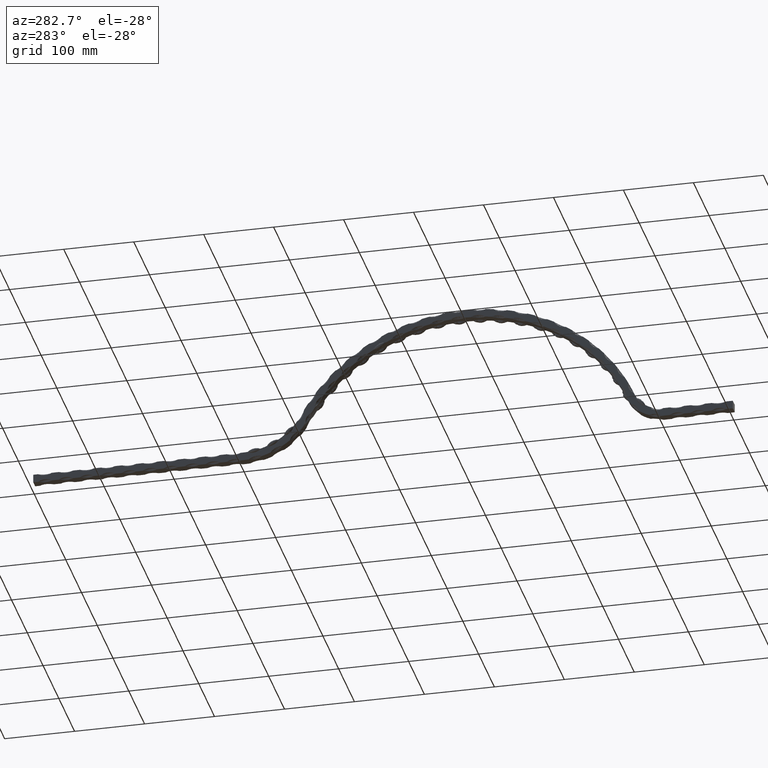
[diagram: clean part render]
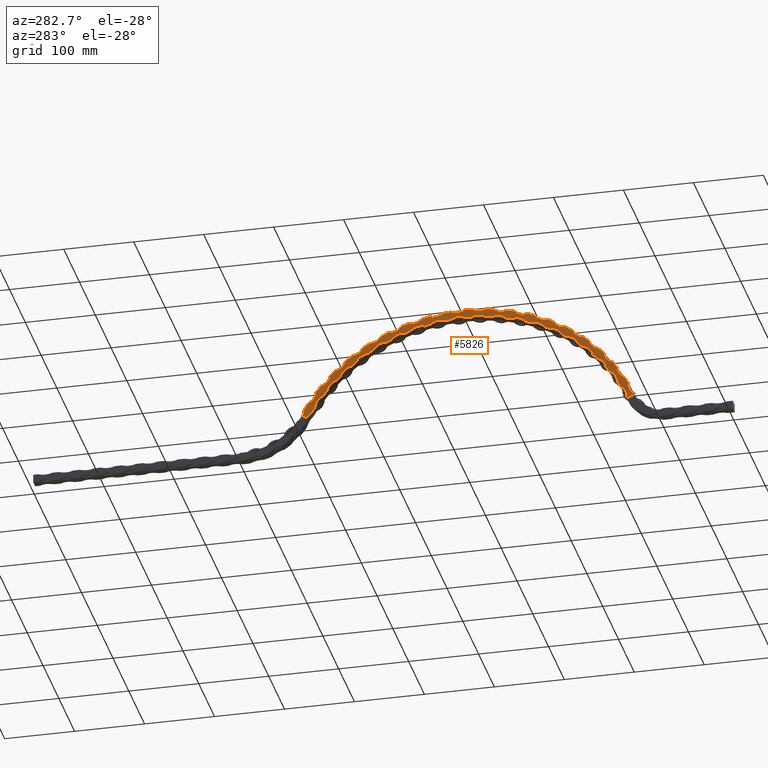
[diagram: same view with one face highlighted and labeled with its STEP entity id]
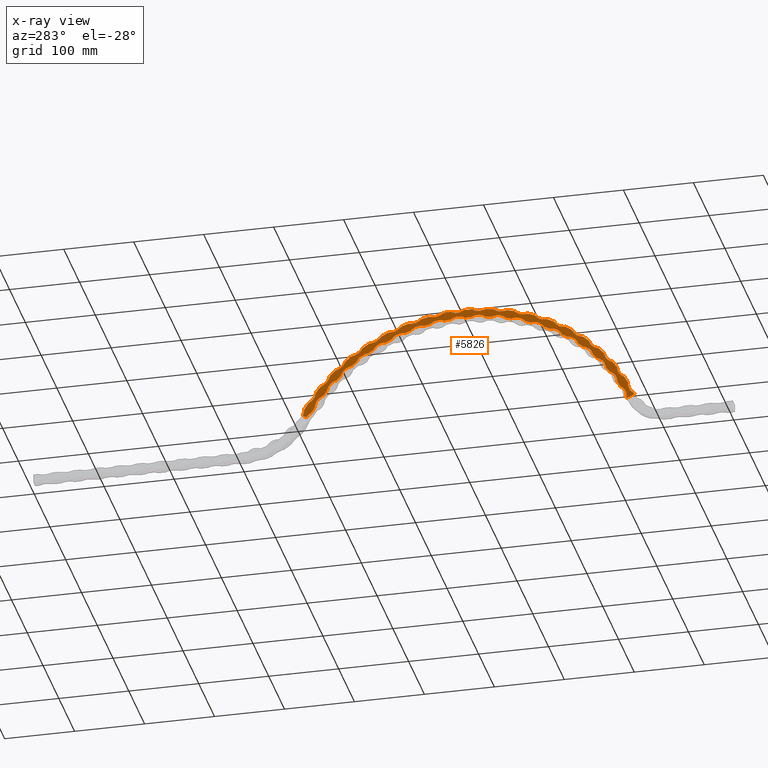
[diagram: x-ray of the same camera — body ghosted, the highlighted face saturated]
A machine part, auxiliary view. The second image highlights one B-rep face of the part: STEP entity #5826.
The next image is the same camera in x-ray: the body ghosted, the highlighted face saturated — about 0% of this face is hidden behind the body in this view.
In plain terms, the highlighted planar face has unit normal (-1, -0, 0).
Its self-contained STEP definition (entity closure, byte-faithful):
#10 = EDGE_CURVE ( 'NONE', #9052, #5892, #15915, .T. ) ;
#30 = VERTEX_POINT ( 'NONE', #1020 ) ;
#48 = CIRCLE ( 'NONE', #5830, 18.16666666666666400 ) ;
#56 = AXIS2_PLACEMENT_3D ( 'NONE', #4099, #9871, #12504 ) ;
#82 = CARTESIAN_POINT ( 'NONE',  ( -6.000000000000000000, 244.7020067574366600, 140.2186133363038900 ) ) ;
#84 = CIRCLE ( 'NONE', #14186, 18.16666666666666400 ) ;
#107 = CARTESIAN_POINT ( 'NONE',  ( -6.000000000000000000, 384.3333333333333100, -71.01447990543748300 ) ) ;
#142 = ORIENTED_EDGE ( 'NONE', *, *, #16395, .F. ) ;
#156 = AXIS2_PLACEMENT_3D ( 'NONE', #8516, #325, #11574 ) ;
#184 = DIRECTION ( 'NONE',  ( -1.000000000000000000, -0.0000000000000000000, 0.0000000000000000000 ) ) ;
#185 = DIRECTION ( 'NONE',  ( 0.0000000000000000000, 0.0000000000000000000, 1.000000000000000000 ) ) ;
#214 = CARTESIAN_POINT ( 'NONE',  ( -6.000000000000000000, 384.3333333333333100, -71.01447990543748300 ) ) ;
#243 = VERTEX_POINT ( 'NONE', #387 ) ;
#245 = DIRECTION ( 'NONE',  ( 1.000000000000000000, 0.0000000000000000000, -0.0000000000000000000 ) ) ;
#257 = EDGE_CURVE ( 'NONE', #7206, #8459, #16342, .T. ) ;
#270 = CARTESIAN_POINT ( 'NONE',  ( -6.000000000000000000, 196.4463381139151500, 120.3480148633824200 ) ) ;
#289 = EDGE_CURVE ( 'NONE', #16903, #695, #5414, .T. ) ;
#325 = DIRECTION ( 'NONE',  ( -1.000000000000000000, -0.0000000000000000000, 0.0000000000000000000 ) ) ;
#350 = CARTESIAN_POINT ( 'NONE',  ( -6.000000000000000000, 402.7675945405827100, 181.3275599047414100 ) ) ;
#361 = CIRCLE ( 'NONE', #17031, 18.16666666666666400 ) ;
#372 = CARTESIAN_POINT ( 'NONE',  ( -6.000000000000000000, 630.9434780631463600, 61.97512363689605100 ) ) ;
#379 = CARTESIAN_POINT ( 'NONE',  ( -6.000000000000000000, 237.0212327868582600, 134.9356890054040200 ) ) ;
#384 = DIRECTION ( 'NONE',  ( 0.0000000000000000000, 6.111319401606371700E-014, 1.000000000000000000 ) ) ;
#387 = CARTESIAN_POINT ( 'NONE',  ( -6.000000000000000000, 576.0232492416934100, 111.9818334415677400 ) ) ;
#398 = DIRECTION ( 'NONE',  ( 0.0000000000000000000, 6.111319401606367100E-015, 1.000000000000000000 ) ) ;
#406 = AXIS2_PLACEMENT_3D ( 'NONE', #16509, #12349, #4182 ) ;
#407 = DIRECTION ( 'NONE',  ( 1.000000000000000000, 0.0000000000000000000, -0.0000000000000000000 ) ) ;
#409 = CIRCLE ( 'NONE', #5183, 18.16666666666666400 ) ;
#414 = EDGE_CURVE ( 'NONE', #12067, #15902, #8436, .T. ) ;
#436 = VERTEX_POINT ( 'NONE', #17633 ) ;
#450 = ORIENTED_EDGE ( 'NONE', *, *, #1680, .T. ) ;
#460 = CARTESIAN_POINT ( 'NONE',  ( -6.000000000000000000, 383.3565206422914600, 181.9981144031969500 ) ) ;
#482 = ORIENTED_EDGE ( 'NONE', *, *, #4101, .F. ) ;
#490 = EDGE_CURVE ( 'NONE', #9254, #3635, #6287, .T. ) ;
#492 = EDGE_CURVE ( 'NONE', #8890, #12600, #8869, .T. ) ;
#509 = CARTESIAN_POINT ( 'NONE',  ( -6.000000000000000000, 614.0352486888514200, 89.41776428651162700 ) ) ;
#550 = AXIS2_PLACEMENT_3D ( 'NONE', #17399, #17335, #17207 ) ;
#584 = CIRCLE ( 'NONE', #13282, 18.16666666666666400 ) ;
#593 = VERTEX_POINT ( 'NONE', #9345 ) ;
#610 = EDGE_CURVE ( 'NONE', #1538, #17812, #1708, .T. ) ;
#619 = DIRECTION ( 'NONE',  ( 0.0000000000000000000, 0.0000000000000000000, 1.000000000000000000 ) ) ;
#626 = AXIS2_PLACEMENT_3D ( 'NONE', #2368, #17524, #16167 ) ;
#637 = EDGE_CURVE ( 'NONE', #13200, #8890, #11953, .T. ) ;
#656 = VERTEX_POINT ( 'NONE', #2807 ) ;
#695 = VERTEX_POINT ( 'NONE', #2745 ) ;
#738 = DIRECTION ( 'NONE',  ( -1.000000000000000000, -0.0000000000000000000, 0.0000000000000000000 ) ) ;
#754 = AXIS2_PLACEMENT_3D ( 'NONE', #13450, #12939, #14648 ) ;
#755 = DIRECTION ( 'NONE',  ( 0.0000000000000000000, 0.0000000000000000000, 1.000000000000000000 ) ) ;
#772 = DIRECTION ( 'NONE',  ( 1.000000000000000000, 0.0000000000000000000, -0.0000000000000000000 ) ) ;
#781 = CARTESIAN_POINT ( 'NONE',  ( -6.000000000000000000, 460.5357240136746100, 170.4591681318165100 ) ) ;
#823 = EDGE_CURVE ( 'NONE', #11425, #10934, #2594, .T. ) ;
#854 = CARTESIAN_POINT ( 'NONE',  ( -6.000000000000000000, 140.4856972090598500, 32.76897212885089800 ) ) ;
#865 = CARTESIAN_POINT ( 'NONE',  ( -6.000000000000000000, 562.2834576844389900, 86.79976376696079400 ) ) ;
#886 = DIRECTION ( 'NONE',  ( 1.000000000000000000, 0.0000000000000000000, -0.0000000000000000000 ) ) ;
#893 = VERTEX_POINT ( 'NONE', #8383 ) ;
#896 = EDGE_CURVE ( 'NONE', #7015, #11496, #15681, .T. ) ;
#935 = VERTEX_POINT ( 'NONE', #10367 ) ;
#956 = DIRECTION ( 'NONE',  ( 0.0000000000000000000, -2.811206924738928700E-013, 1.000000000000000000 ) ) ;
#962 = CIRCLE ( 'NONE', #14696, 253.0144799054374700 ) ;
#978 = VERTEX_POINT ( 'NONE', #7792 ) ;
#1000 = VERTEX_POINT ( 'NONE', #6997 ) ;
#1005 = EDGE_CURVE ( 'NONE', #14706, #3423, #3888, .T. ) ;
#1011 = CIRCLE ( 'NONE', #7494, 265.0144799054375000 ) ;
#1020 = CARTESIAN_POINT ( 'NONE',  ( -6.000000000000000000, 560.0774186586350000, 111.0029464992671400 ) ) ;
#1033 = EDGE_CURVE ( 'NONE', #11307, #16903, #3032, .T. ) ;
#1047 = ORIENTED_EDGE ( 'NONE', *, *, #13844, .T. ) ;
#1059 = AXIS2_PLACEMENT_3D ( 'NONE', #17516, #772, #11981 ) ;
#1075 = DIRECTION ( 'NONE',  ( 1.000000000000000000, 0.0000000000000000000, -0.0000000000000000000 ) ) ;
#1082 = VERTEX_POINT ( 'NONE', #3744 ) ;
#1092 = AXIS2_PLACEMENT_3D ( 'NONE', #107, #16822, #5690 ) ;
#1124 = CARTESIAN_POINT ( 'NONE',  ( -6.000000000000000000, 384.3333333333333100, -71.01447990543748300 ) ) ;
#1126 = CIRCLE ( 'NONE', #14079, 18.16666666666666400 ) ;
#1169 = EDGE_CURVE ( 'NONE', #1726, #5995, #13700, .T. ) ;
#1171 = EDGE_CURVE ( 'NONE', #12886, #3353, #16115, .T. ) ;
#1221 = ORIENTED_EDGE ( 'NONE', *, *, #11745, .T. ) ;
#1245 = DIRECTION ( 'NONE',  ( 1.000000000000000000, 0.0000000000000000000, -0.0000000000000000000 ) ) ;
#1254 = ORIENTED_EDGE ( 'NONE', *, *, #8034, .T. ) ;
#1259 = AXIS2_PLACEMENT_3D ( 'NONE', #18109, #9526, #2487 ) ;
#1320 = AXIS2_PLACEMENT_3D ( 'NONE', #4779, #14357, #4660 ) ;
#1345 = CARTESIAN_POINT ( 'NONE',  ( -6.000000000000000000, 238.4276868743419300, 116.8235476444942500 ) ) ;
#1364 = CIRCLE ( 'NONE', #6908, 265.0144799054375000 ) ;
#1368 = CARTESIAN_POINT ( 'NONE',  ( -6.000000000000000000, 384.3333333333333100, -71.01447990543748300 ) ) ;
#1379 = DIRECTION ( 'NONE',  ( 0.0000000000000000000, -0.9201294820240882900, 0.3916142697988455600 ) ) ;
#1395 = VERTEX_POINT ( 'NONE', #13675 ) ;
#1408 = CARTESIAN_POINT ( 'NONE',  ( -6.000000000000000000, 384.3333333333333100, -71.01447990543748300 ) ) ;
#1410 = DIRECTION ( 'NONE',  ( 0.0000000000000000000, 1.665334536937735100E-013, 1.000000000000000000 ) ) ;
#1411 = CIRCLE ( 'NONE', #16924, 18.16666666666666400 ) ;
#1424 = DIRECTION ( 'NONE',  ( 1.000000000000000000, 0.0000000000000000000, -0.0000000000000000000 ) ) ;
#1443 = CARTESIAN_POINT ( 'NONE',  ( -6.000000000000000000, 394.0064059194925200, 208.9996385979010000 ) ) ;
#1502 = ORIENTED_EDGE ( 'NONE', *, *, #16183, .F. ) ;
#1538 = VERTEX_POINT ( 'NONE', #2436 ) ;
#1580 = EDGE_CURVE ( 'NONE', #3749, #7930, #8853, .T. ) ;
#1581 = VERTEX_POINT ( 'NONE', #12490 ) ;
#1599 = DIRECTION ( 'NONE',  ( -1.000000000000000000, -0.0000000000000000000, 0.0000000000000000000 ) ) ;
#1606 = DIRECTION ( 'NONE',  ( 1.000000000000000000, 0.0000000000000000000, -0.0000000000000000000 ) ) ;
#1611 = CARTESIAN_POINT ( 'NONE',  ( -6.000000000000000000, 166.2500303466546500, 104.8864804469133200 ) ) ;
#1617 = CARTESIAN_POINT ( 'NONE',  ( -6.000000000000000000, 285.4489590256600300, 145.3034869402341100 ) ) ;
#1653 = DIRECTION ( 'NONE',  ( -1.000000000000000000, -0.0000000000000000000, 0.0000000000000000000 ) ) ;
#1657 = EDGE_CURVE ( 'NONE', #11803, #13558, #6041, .T. ) ;
#1680 = EDGE_CURVE ( 'NONE', #10311, #9970, #17853, .T. ) ;
#1704 = CIRCLE ( 'NONE', #14093, 18.16666666666666400 ) ;
#1708 = CIRCLE ( 'NONE', #17787, 18.16666666666666400 ) ;
#1712 = DIRECTION ( 'NONE',  ( -1.000000000000000000, -0.0000000000000000000, 0.0000000000000000000 ) ) ;
#1720 = DIRECTION ( 'NONE',  ( 0.0000000000000000000, -1.222263880321273300E-013, 1.000000000000000000 ) ) ;
#1723 = ORIENTED_EDGE ( 'NONE', *, *, #16478, .T. ) ;
#1726 = VERTEX_POINT ( 'NONE', #17862 ) ;
#1736 = DIRECTION ( 'NONE',  ( -1.000000000000000000, -0.0000000000000000000, 0.0000000000000000000 ) ) ;
#1759 = ORIENTED_EDGE ( 'NONE', *, *, #9131, .T. ) ;
#1796 = CIRCLE ( 'NONE', #3732, 18.16666666666666400 ) ;
#1816 = CARTESIAN_POINT ( 'NONE',  ( -6.000000000000000000, 245.0455099201452400, 140.2086942271267300 ) ) ;
#1818 = DIRECTION ( 'NONE',  ( 0.0000000000000000000, 0.0000000000000000000, 1.000000000000000000 ) ) ;
#1828 = CARTESIAN_POINT ( 'NONE',  ( -6.000000000000000000, 560.4168910410644500, 110.9495488112491000 ) ) ;
#1830 = DIRECTION ( 'NONE',  ( 1.000000000000000000, 0.0000000000000000000, -0.0000000000000000000 ) ) ;
#1836 = ORIENTED_EDGE ( 'NONE', *, *, #10, .T. ) ;
#1876 = CIRCLE ( 'NONE', #14212, 18.16666666666666400 ) ;
#1923 = CARTESIAN_POINT ( 'NONE',  ( -6.000000000000000000, 362.5562412873184100, 196.2810225609296100 ) ) ;
#1939 = CARTESIAN_POINT ( 'NONE',  ( -6.000000000000000000, 344.5888104198222700, 179.0589092030326700 ) ) ;
#1959 = CARTESIAN_POINT ( 'NONE',  ( -6.000000000000000000, 157.5316728203340200, 72.10132692691250600 ) ) ;
#1998 = EDGE_CURVE ( 'NONE', #11307, #14152, #14134, .T. ) ;
#2000 = EDGE_CURVE ( 'NONE', #14869, #436, #15219, .T. ) ;
#2001 = ORIENTED_EDGE ( 'NONE', *, *, #11173, .F. ) ;
#2043 = CIRCLE ( 'NONE', #9520, 253.0144799054374700 ) ;
#2056 = CARTESIAN_POINT ( 'NONE',  ( -6.000000000000000000, 342.0029396196666800, 190.5974699890493600 ) ) ;
#2074 = CARTESIAN_POINT ( 'NONE',  ( -6.000000000000000000, 196.4463381139151500, 120.3480148633824200 ) ) ;
#2103 = DIRECTION ( 'NONE',  ( 1.000000000000000000, 0.0000000000000000000, -0.0000000000000000000 ) ) ;
#2128 = CARTESIAN_POINT ( 'NONE',  ( -6.000000000000000000, 512.3942145322386100, 164.6156074842847400 ) ) ;
#2141 = VERTEX_POINT ( 'NONE', #4247 ) ;
#2143 = EDGE_CURVE ( 'NONE', #7181, #3431, #16604, .T. ) ;
#2191 = EDGE_CURVE ( 'NONE', #3658, #15863, #10649, .T. ) ;
#2194 = CARTESIAN_POINT ( 'NONE',  ( -6.000000000000000000, 315.9554076272694400, 172.7903320199117700 ) ) ;
#2200 = DIRECTION ( 'NONE',  ( 0.0000000000000000000, 0.0000000000000000000, 1.000000000000000000 ) ) ;
#2206 = CIRCLE ( 'NONE', #3632, 253.0144799054374700 ) ;
#2220 = EDGE_CURVE ( 'NONE', #4327, #1082, #5438, .T. ) ;
#2226 = VERTEX_POINT ( 'NONE', #11590 ) ;
#2240 = CIRCLE ( 'NONE', #406, 253.0144799054374700 ) ;
#2258 = CIRCLE ( 'NONE', #8477, 253.0144799054374700 ) ;
#2263 = AXIS2_PLACEMENT_3D ( 'NONE', #3330, #6042, #11521 ) ;
#2268 = DIRECTION ( 'NONE',  ( 0.0000000000000000000, -6.722451341767008500E-014, 1.000000000000000000 ) ) ;
#2290 = ORIENTED_EDGE ( 'NONE', *, *, #13516, .T. ) ;
#2310 = CARTESIAN_POINT ( 'NONE',  ( -6.000000000000000000, 595.8868562148578600, 88.60313038855798600 ) ) ;
#2313 = CARTESIAN_POINT ( 'NONE',  ( -6.000000000000000000, 384.3333333333333100, -71.01447990543748300 ) ) ;
#2355 = EDGE_CURVE ( 'NONE', #17324, #14070, #13962, .T. ) ;
#2368 = CARTESIAN_POINT ( 'NONE',  ( -6.000000000000000000, 419.9603178205170500, 164.1499311750128800 ) ) ;
#2436 = CARTESIAN_POINT ( 'NONE',  ( -6.000000000000000000, 487.9310290253557700, 160.0349617496379200 ) ) ;
#2448 = CARTESIAN_POINT ( 'NONE',  ( -6.000000000000000000, 297.2588049560597500, 166.5446780946159900 ) ) ;
#2451 = CIRCLE ( 'NONE', #2263, 253.0144799054374700 ) ;
#2452 = VERTEX_POINT ( 'NONE', #5188 ) ;
#2457 = DIRECTION ( 'NONE',  ( 0.0000000000000000000, 0.0000000000000000000, 1.000000000000000000 ) ) ;
#2470 = CIRCLE ( 'NONE', #13480, 253.0144799054374700 ) ;
#2474 = CIRCLE ( 'NONE', #7536, 18.16666666666666400 ) ;
#2485 = DIRECTION ( 'NONE',  ( 0.0000000000000000000, -3.055659700803183600E-015, 1.000000000000000000 ) ) ;
#2487 = DIRECTION ( 'NONE',  ( 0.0000000000000000000, 0.0000000000000000000, 1.000000000000000000 ) ) ;
#2504 = CARTESIAN_POINT ( 'NONE',  ( -6.000000000000000000, 344.3422397640932200, 178.8195439523135200 ) ) ;
#2512 = CARTESIAN_POINT ( 'NONE',  ( -6.000000000000000000, 553.5909733788666900, 132.9083629684450600 ) ) ;
#2548 = DIRECTION ( 'NONE',  ( 0.0000000000000000000, 0.0000000000000000000, 1.000000000000000000 ) ) ;
#2583 = ORIENTED_EDGE ( 'NONE', *, *, #15778, .T. ) ;
#2594 = CIRCLE ( 'NONE', #3886, 265.0144799054375000 ) ;
#2619 = CARTESIAN_POINT ( 'NONE',  ( -6.000000000000000000, 607.0227471802464800, 72.65910681135524400 ) ) ;
#2627 = CIRCLE ( 'NONE', #15001, 265.0144799054375000 ) ;
#2640 = AXIS2_PLACEMENT_3D ( 'NONE', #6599, #16514, #15167 ) ;
#2649 = CARTESIAN_POINT ( 'NONE',  ( -6.000000000000000000, 270.3887214001911700, 154.8902620838015900 ) ) ;
#2655 = CIRCLE ( 'NONE', #11426, 18.16666666666666400 ) ;
#2732 = ORIENTED_EDGE ( 'NONE', *, *, #1171, .T. ) ;
#2739 = EDGE_CURVE ( 'NONE', #4222, #17789, #2627, .T. ) ;
#2745 = CARTESIAN_POINT ( 'NONE',  ( -6.000000000000000000, 199.9364957620951800, 102.5197626392122600 ) ) ;
#2751 = ORIENTED_EDGE ( 'NONE', *, *, #17797, .T. ) ;
#2765 = DIRECTION ( 'NONE',  ( 1.000000000000000000, 0.0000000000000000000, -0.0000000000000000000 ) ) ;
#2774 = DIRECTION ( 'NONE',  ( 1.000000000000000000, 0.0000000000000000000, -0.0000000000000000000 ) ) ;
#2780 = ORIENTED_EDGE ( 'NONE', *, *, #9940, .T. ) ;
#2807 = CARTESIAN_POINT ( 'NONE',  ( -6.000000000000000000, 270.0486660305507500, 154.9398116256401700 ) ) ;
#2818 = VERTEX_POINT ( 'NONE', #17390 ) ;
#2829 = EDGE_CURVE ( 'NONE', #4939, #13305, #18108, .T. ) ;
#2872 = AXIS2_PLACEMENT_3D ( 'NONE', #13976, #11135, #18022 ) ;
#2897 = AXIS2_PLACEMENT_3D ( 'NONE', #14634, #16091, #16279 ) ;
#2900 = ORIENTED_EDGE ( 'NONE', *, *, #10851, .F. ) ;
#2920 = CARTESIAN_POINT ( 'NONE',  ( -6.000000000000000000, 384.3333333333333100, -71.01447990543748300 ) ) ;
#2923 = CARTESIAN_POINT ( 'NONE',  ( -6.000000000000000000, 441.4695254329915300, 175.4642871195741800 ) ) ;
#2925 = AXIS2_PLACEMENT_3D ( 'NONE', #17648, #3547, #14773 ) ;
#2951 = ORIENTED_EDGE ( 'NONE', *, *, #8863, .T. ) ;
#2975 = DIRECTION ( 'NONE',  ( 0.0000000000000000000, 3.666791640963821400E-014, 1.000000000000000000 ) ) ;
#3005 = AXIS2_PLACEMENT_3D ( 'NONE', #8472, #14185, #13939 ) ;
#3010 = DIRECTION ( 'NONE',  ( 0.0000000000000000000, -6.111319401606367100E-015, 1.000000000000000000 ) ) ;
#3032 = CIRCLE ( 'NONE', #9461, 18.16666666666666400 ) ;
#3040 = ORIENTED_EDGE ( 'NONE', *, *, #490, .T. ) ;
#3059 = CARTESIAN_POINT ( 'NONE',  ( -6.000000000000000000, 497.9095520344508300, 137.9640472403461300 ) ) ;
#3104 = ORIENTED_EDGE ( 'NONE', *, *, #3281, .T. ) ;
#3149 = CARTESIAN_POINT ( 'NONE',  ( -6.000000000000000000, 567.0476275353847800, 104.0049868291666800 ) ) ;
#3151 = EDGE_CURVE ( 'NONE', #12886, #4577, #17675, .T. ) ;
#3161 = ORIENTED_EDGE ( 'NONE', *, *, #10474, .T. ) ;
#3175 = DIRECTION ( 'NONE',  ( 0.0000000000000000000, 3.055659700803183600E-015, 1.000000000000000000 ) ) ;
#3184 = CARTESIAN_POINT ( 'NONE',  ( -6.000000000000000000, 446.8983545758890200, 158.4570877873458700 ) ) ;
#3185 = DIRECTION ( 'NONE',  ( 1.000000000000000000, 0.0000000000000000000, -0.0000000000000000000 ) ) ;
#3220 = CIRCLE ( 'NONE', #8203, 18.16666666666666400 ) ;
#3236 = DIRECTION ( 'NONE',  ( 0.0000000000000000000, 0.0000000000000000000, 1.000000000000000000 ) ) ;
#3272 = ORIENTED_EDGE ( 'NONE', *, *, #1998, .F. ) ;
#3281 = EDGE_CURVE ( 'NONE', #4560, #16901, #6717, .T. ) ;
#3303 = CARTESIAN_POINT ( 'NONE',  ( -6.000000000000000000, 181.1175074957969900, 80.04727955402012200 ) ) ;
#3320 = DIRECTION ( 'NONE',  ( 0.0000000000000000000, 0.0000000000000000000, 1.000000000000000000 ) ) ;
#3329 = ORIENTED_EDGE ( 'NONE', *, *, #11608, .T. ) ;
#3330 = CARTESIAN_POINT ( 'NONE',  ( -6.000000000000000000, 384.3333333333333100, -71.01447990543748300 ) ) ;
#3340 = AXIS2_PLACEMENT_3D ( 'NONE', #14839, #3560, #2268 ) ;
#3344 = VERTEX_POINT ( 'NONE', #2448 ) ;
#3353 = VERTEX_POINT ( 'NONE', #16363 ) ;
#3362 = CARTESIAN_POINT ( 'NONE',  ( -6.000000000000000000, 383.0744557825987600, 182.1944106753063300 ) ) ;
#3365 = CIRCLE ( 'NONE', #12879, 265.0144799054375000 ) ;
#3369 = ORIENTED_EDGE ( 'NONE', *, *, #2829, .T. ) ;
#3416 = VERTEX_POINT ( 'NONE', #10837 ) ;
#3421 = EDGE_CURVE ( 'NONE', #16043, #3911, #8673, .T. ) ;
#3423 = VERTEX_POINT ( 'NONE', #2512 ) ;
#3431 = VERTEX_POINT ( 'NONE', #8199 ) ;
#3488 = CARTESIAN_POINT ( 'NONE',  ( -6.000000000000000000, 403.1947675990355200, 193.3279511513077900 ) ) ;
#3496 = VERTEX_POINT ( 'NONE', #16674 ) ;
#3497 = AXIS2_PLACEMENT_3D ( 'NONE', #2074, #8991, #12060 ) ;
#3516 = EDGE_CURVE ( 'NONE', #3431, #17735, #5854, .T. ) ;
#3535 = CARTESIAN_POINT ( 'NONE',  ( -6.000000000000000000, 221.5687727249602700, 122.6967093732985000 ) ) ;
#3538 = EDGE_CURVE ( 'NONE', #5161, #7048, #409, .T. ) ;
#3547 = DIRECTION ( 'NONE',  ( -1.000000000000000000, -0.0000000000000000000, 0.0000000000000000000 ) ) ;
#3560 = DIRECTION ( 'NONE',  ( 1.000000000000000000, 0.0000000000000000000, -0.0000000000000000000 ) ) ;
#3583 = CARTESIAN_POINT ( 'NONE',  ( -6.000000000000000000, 384.3333333333333100, -71.01447990543748300 ) ) ;
#3604 = AXIS2_PLACEMENT_3D ( 'NONE', #5119, #6501, #956 ) ;
#3607 = VERTEX_POINT ( 'NONE', #4756 ) ;
#3608 = DIRECTION ( 'NONE',  ( 1.000000000000000000, 0.0000000000000000000, -0.0000000000000000000 ) ) ;
#3632 = AXIS2_PLACEMENT_3D ( 'NONE', #16523, #9657, #18107 ) ;
#3635 = VERTEX_POINT ( 'NONE', #4815 ) ;
#3658 = VERTEX_POINT ( 'NONE', #17699 ) ;
#3690 = CARTESIAN_POINT ( 'NONE',  ( -6.000000000000000000, 414.3886213783726500, 192.2901995442055100 ) ) ;
#3732 = AXIS2_PLACEMENT_3D ( 'NONE', #10002, #4361, #7121 ) ;
#3744 = CARTESIAN_POINT ( 'NONE',  ( -6.000000000000000000, 354.1237029559604800, 180.1900289599121500 ) ) ;
#3749 = VERTEX_POINT ( 'NONE', #12422 ) ;
#3867 = DIRECTION ( 'NONE',  ( 1.000000000000000000, 0.0000000000000000000, -0.0000000000000000000 ) ) ;
#3886 = AXIS2_PLACEMENT_3D ( 'NONE', #9429, #5360, #14954 ) ;
#3888 = CIRCLE ( 'NONE', #156, 265.0144799054375000 ) ;
#3894 = CARTESIAN_POINT ( 'NONE',  ( -6.000000000000000000, 544.7902741017762800, 139.9031455287161200 ) ) ;
#3906 = EDGE_CURVE ( 'NONE', #3416, #4222, #7575, .T. ) ;
#3911 = VERTEX_POINT ( 'NONE', #15421 ) ;
#3931 = CARTESIAN_POINT ( 'NONE',  ( -6.000000000000000000, 484.3056430100739900, 177.8362076054194200 ) ) ;
#4042 = EDGE_CURVE ( 'NONE', #14070, #10106, #10854, .T. ) ;
#4051 = ORIENTED_EDGE ( 'NONE', *, *, #10967, .F. ) ;
#4053 = AXIS2_PLACEMENT_3D ( 'NONE', #15264, #9748, #18023 ) ;
#4098 = EDGE_CURVE ( 'NONE', #13253, #13921, #1704, .T. ) ;
#4099 = CARTESIAN_POINT ( 'NONE',  ( -6.000000000000000000, 571.0675892210325600, 137.8677658037803700 ) ) ;
#4101 = EDGE_CURVE ( 'NONE', #11867, #1082, #16129, .T. ) ;
#4133 = AXIS2_PLACEMENT_3D ( 'NONE', #8493, #6969, #185 ) ;
#4177 = VERTEX_POINT ( 'NONE', #7603 ) ;
#4182 = DIRECTION ( 'NONE',  ( 0.0000000000000000000, 0.0000000000000000000, 1.000000000000000000 ) ) ;
#4190 = DIRECTION ( 'NONE',  ( 1.000000000000000000, 0.0000000000000000000, -0.0000000000000000000 ) ) ;
#4194 = CIRCLE ( 'NONE', #13721, 18.16666666666666400 ) ;
#4204 = CARTESIAN_POINT ( 'NONE',  ( -6.000000000000000000, 566.9955791344518700, 104.3446687030984100 ) ) ;
#4205 = DIRECTION ( 'NONE',  ( 1.000000000000000000, 0.0000000000000000000, -0.0000000000000000000 ) ) ;
#4214 = CIRCLE ( 'NONE', #12305, 253.0144799054374700 ) ;
#4222 = VERTEX_POINT ( 'NONE', #854 ) ;
#4226 = DIRECTION ( 'NONE',  ( 0.0000000000000000000, 0.0000000000000000000, 1.000000000000000000 ) ) ;
#4247 = CARTESIAN_POINT ( 'NONE',  ( -6.000000000000000000, 568.0898661952010100, 119.9468020082920100 ) ) ;
#4266 = CARTESIAN_POINT ( 'NONE',  ( -6.000000000000000000, 255.4483803015741900, 160.5483483756810000 ) ) ;
#4301 = CARTESIAN_POINT ( 'NONE',  ( -6.000000000000000000, 239.1813244692470400, 168.6360348388020900 ) ) ;
#4306 = CIRCLE ( 'NONE', #1092, 253.0144799054374700 ) ;
#4309 = VERTEX_POINT ( 'NONE', #4204 ) ;
#4327 = VERTEX_POINT ( 'NONE', #15305 ) ;
#4360 = ORIENTED_EDGE ( 'NONE', *, *, #3538, .T. ) ;
#4361 = DIRECTION ( 'NONE',  ( 1.000000000000000000, 0.0000000000000000000, -0.0000000000000000000 ) ) ;
#4362 = EDGE_LOOP ( 'NONE', ( #16589, #12127, #6952, #14783, #12344, #10974, #142, #3104, #4900, #7858, #6291, #8373, #4360, #15727, #13361, #2732, #12719, #11140, #2900, #13407, #6610, #1759, #15536, #12430, #17212, #12007, #9786, #5031, #14740, #13476, #15669, #8312, #16918, #13423, #2001, #13990, #17352, #5802, #13604, #450, #5609, #12686, #482, #13759, #15746, #12023, #8379, #1254, #4495, #5698, #9244, #13459, #10353, #11339, #17480, #4842, #7008, #3369, #1502, #16420, #1836, #5370, #3272, #8033, #15059, #1221, #13214, #15888, #2951, #9719, #6560, #12266, #2751, #16632, #4051, #13670, #1047, #6778, #11715, #16078, #13441, #14666, #2780, #12545, #10970, #9488, #1723, #16613, #11353, #3040, #3329, #4936, #14952, #10888, #7598, #2583, #16935, #10757, #16836, #6463, #16207, #10303, #5720, #4480, #18082, #13646, #16154, #9840, #15126, #2290, #8457, #3161, #14207, #14220, #9704, #13026, #6132, #15013, #9307, #6427, #4770 ) ) ;
#4369 = VERTEX_POINT ( 'NONE', #4266 ) ;
#4456 = EDGE_CURVE ( 'NONE', #10271, #893, #8434, .T. ) ;
#4480 = ORIENTED_EDGE ( 'NONE', *, *, #5263, .T. ) ;
#4481 = AXIS2_PLACEMENT_3D ( 'NONE', #17721, #15021, #17900 ) ;
#4491 = CIRCLE ( 'NONE', #11505, 18.16666666666665000 ) ;
#4495 = ORIENTED_EDGE ( 'NONE', *, *, #13625, .T. ) ;
#4539 = CARTESIAN_POINT ( 'NONE',  ( -6.000000000000000000, 384.3333333333333100, -71.01447990543748300 ) ) ;
#4546 = DIRECTION ( 'NONE',  ( 0.0000000000000000000, 3.055659700803183600E-015, 1.000000000000000000 ) ) ;
#4559 = AXIS2_PLACEMENT_3D ( 'NONE', #16652, #8366, #13887 ) ;
#4560 = VERTEX_POINT ( 'NONE', #16508 ) ;
#4577 = VERTEX_POINT ( 'NONE', #14915 ) ;
#4580 = CARTESIAN_POINT ( 'NONE',  ( -6.000000000000000000, 288.2382776061269900, 163.2547398111186400 ) ) ;
#4645 = DIRECTION ( 'NONE',  ( 0.0000000000000000000, 0.0000000000000000000, 1.000000000000000000 ) ) ;
#4647 = CIRCLE ( 'NONE', #1259, 265.0144799054375000 ) ;
#4660 = DIRECTION ( 'NONE',  ( 0.0000000000000000000, 1.527829850401591800E-015, 1.000000000000000000 ) ) ;
#4694 = CIRCLE ( 'NONE', #9992, 18.16666666666666400 ) ;
#4699 = AXIS2_PLACEMENT_3D ( 'NONE', #11383, #8560, #1818 ) ;
#4709 = EDGE_CURVE ( 'NONE', #4824, #8496, #7989, .T. ) ;
#4711 = EDGE_CURVE ( 'NONE', #12705, #4177, #7557, .T. ) ;
#4720 = CARTESIAN_POINT ( 'NONE',  ( -6.000000000000000000, 265.3849737069467100, 165.8060477135620100 ) ) ;
#4729 = CIRCLE ( 'NONE', #4863, 265.0144799054375000 ) ;
#4756 = CARTESIAN_POINT ( 'NONE',  ( -6.000000000000000000, 496.3656546314968000, 156.0649908231246200 ) ) ;
#4770 = ORIENTED_EDGE ( 'NONE', *, *, #4794, .F. ) ;
#4779 = CARTESIAN_POINT ( 'NONE',  ( -6.000000000000000000, 147.3832341215523300, 78.50516889693875600 ) ) ;
#4781 = DIRECTION ( 'NONE',  ( -1.000000000000000000, -0.0000000000000000000, 0.0000000000000000000 ) ) ;
#4794 = EDGE_CURVE ( 'NONE', #11082, #17735, #13699, .T. ) ;
#4796 = CARTESIAN_POINT ( 'NONE',  ( -6.000000000000000000, 496.5302612596827900, 155.7633329548785900 ) ) ;
#4815 = CARTESIAN_POINT ( 'NONE',  ( -6.000000000000000000, 229.5513941518178700, 144.1022927152932900 ) ) ;
#4824 = VERTEX_POINT ( 'NONE', #17783 ) ;
#4833 = CARTESIAN_POINT ( 'NONE',  ( -6.000000000000000000, 579.3289600287480400, 65.17761910227878300 ) ) ;
#4842 = ORIENTED_EDGE ( 'NONE', *, *, #4935, .T. ) ;
#4851 = CARTESIAN_POINT ( 'NONE',  ( -6.000000000000000000, 384.3333333333333100, -71.01447990543748300 ) ) ;
#4860 = CIRCLE ( 'NONE', #2872, 253.0144799054374700 ) ;
#4863 = AXIS2_PLACEMENT_3D ( 'NONE', #9945, #1599, #17477 ) ;
#4866 = AXIS2_PLACEMENT_3D ( 'NONE', #16351, #3608, #13354 ) ;
#4868 = DIRECTION ( 'NONE',  ( -1.000000000000000000, -0.0000000000000000000, 0.0000000000000000000 ) ) ;
#4870 = DIRECTION ( 'NONE',  ( 0.0000000000000000000, 7.486366266967800000E-014, 1.000000000000000000 ) ) ;
#4896 = CIRCLE ( 'NONE', #3604, 18.16666666666666400 ) ;
#4900 = ORIENTED_EDGE ( 'NONE', *, *, #15084, .T. ) ;
#4909 = CARTESIAN_POINT ( 'NONE',  ( -6.000000000000000000, 521.2991563005933800, 123.4384593918799700 ) ) ;
#4911 = CARTESIAN_POINT ( 'NONE',  ( -6.000000000000000000, 424.5039172818510500, 194.1410434425843300 ) ) ;
#4912 = CARTESIAN_POINT ( 'NONE',  ( -6.000000000000000000, 617.3496660232694900, 55.22364135467372400 ) ) ;
#4916 = AXIS2_PLACEMENT_3D ( 'NONE', #16304, #6567, #14895 ) ;
#4935 = EDGE_CURVE ( 'NONE', #10669, #14139, #12140, .T. ) ;
#4936 = ORIENTED_EDGE ( 'NONE', *, *, #12039, .T. ) ;
#4939 = VERTEX_POINT ( 'NONE', #82 ) ;
#4989 = DIRECTION ( 'NONE',  ( 0.0000000000000000000, 0.0000000000000000000, 1.000000000000000000 ) ) ;
#5014 = EDGE_CURVE ( 'NONE', #7790, #15902, #13467, .T. ) ;
#5031 = ORIENTED_EDGE ( 'NONE', *, *, #11280, .T. ) ;
#5034 = AXIS2_PLACEMENT_3D ( 'NONE', #1345, #2765, #4226 ) ;
#5078 = CARTESIAN_POINT ( 'NONE',  ( -6.000000000000000000, 432.1192974196142700, 177.6475973764907500 ) ) ;
#5102 = CARTESIAN_POINT ( 'NONE',  ( -6.000000000000000000, 454.8774300128880600, 187.7221773358469900 ) ) ;
#5113 = CIRCLE ( 'NONE', #550, 18.16666666666666400 ) ;
#5119 = CARTESIAN_POINT ( 'NONE',  ( -6.000000000000000000, 563.0698666830682000, 128.9214573916061400 ) ) ;
#5133 = CARTESIAN_POINT ( 'NONE',  ( -6.000000000000000000, 184.2989436787436800, 102.8214125767117200 ) ) ;
#5161 = VERTEX_POINT ( 'NONE', #1828 ) ;
#5183 = AXIS2_PLACEMENT_3D ( 'NONE', #12743, #3185, #3010 ) ;
#5188 = CARTESIAN_POINT ( 'NONE',  ( -6.000000000000000000, 474.0356125961987500, 178.3570815337058400 ) ) ;
#5229 = CARTESIAN_POINT ( 'NONE',  ( -6.000000000000000000, 141.3243364004618700, 34.71773831223361400 ) ) ;
#5254 = CARTESIAN_POINT ( 'NONE',  ( -6.000000000000000000, 469.5709909922894700, 167.2099284968788300 ) ) ;
#5263 = EDGE_CURVE ( 'NONE', #11957, #17324, #6037, .T. ) ;
#5304 = AXIS2_PLACEMENT_3D ( 'NONE', #16981, #12851, #5851 ) ;
#5329 = DIRECTION ( 'NONE',  ( 0.0000000000000000000, 0.0000000000000000000, 1.000000000000000000 ) ) ;
#5342 = DIRECTION ( 'NONE',  ( 0.0000000000000000000, -6.111319401606367100E-015, 1.000000000000000000 ) ) ;
#5356 = DIRECTION ( 'NONE',  ( 1.000000000000000000, 0.0000000000000000000, -0.0000000000000000000 ) ) ;
#5360 = DIRECTION ( 'NONE',  ( -1.000000000000000000, -0.0000000000000000000, 0.0000000000000000000 ) ) ;
#5370 = ORIENTED_EDGE ( 'NONE', *, *, #15807, .T. ) ;
#5414 = CIRCLE ( 'NONE', #13435, 18.16666666666666400 ) ;
#5424 = AXIS2_PLACEMENT_3D ( 'NONE', #4911, #6288, #13191 ) ;
#5438 = CIRCLE ( 'NONE', #15361, 18.16666666666666400 ) ;
#5476 = AXIS2_PLACEMENT_3D ( 'NONE', #7082, #5700, #8480 ) ;
#5501 = EDGE_CURVE ( 'NONE', #17117, #12067, #584, .T. ) ;
#5515 = AXIS2_PLACEMENT_3D ( 'NONE', #11343, #1606, #16996 ) ;
#5564 = CARTESIAN_POINT ( 'NONE',  ( -6.000000000000000000, 142.5121014704382400, 44.93214228356915600 ) ) ;
#5568 = DIRECTION ( 'NONE',  ( 0.0000000000000000000, 0.0000000000000000000, 1.000000000000000000 ) ) ;
#5574 = EDGE_CURVE ( 'NONE', #12600, #6961, #12592, .T. ) ;
#5582 = DIRECTION ( 'NONE',  ( 0.0000000000000000000, 0.0000000000000000000, 1.000000000000000000 ) ) ;
#5609 = ORIENTED_EDGE ( 'NONE', *, *, #6211, .T. ) ;
#5644 = CARTESIAN_POINT ( 'NONE',  ( -6.000000000000000000, 597.4891213638794600, 65.66374466195985300 ) ) ;
#5665 = AXIS2_PLACEMENT_3D ( 'NONE', #2128, #6439, #7823 ) ;
#5673 = DIRECTION ( 'NONE',  ( 1.000000000000000000, 0.0000000000000000000, -0.0000000000000000000 ) ) ;
#5680 = CIRCLE ( 'NONE', #16168, 265.0144799054375000 ) ;
#5685 = DIRECTION ( 'NONE',  ( 0.0000000000000000000, 0.0000000000000000000, 1.000000000000000000 ) ) ;
#5690 = DIRECTION ( 'NONE',  ( 0.0000000000000000000, 0.0000000000000000000, 1.000000000000000000 ) ) ;
#5698 = ORIENTED_EDGE ( 'NONE', *, *, #12142, .T. ) ;
#5699 = CIRCLE ( 'NONE', #4559, 18.16666666666666400 ) ;
#5700 = DIRECTION ( 'NONE',  ( 1.000000000000000000, 0.0000000000000000000, -0.0000000000000000000 ) ) ;
#5720 = ORIENTED_EDGE ( 'NONE', *, *, #12975, .T. ) ;
#5765 = CIRCLE ( 'NONE', #17169, 265.0144799054375000 ) ;
#5775 = CARTESIAN_POINT ( 'NONE',  ( -6.000000000000000000, 454.8774300128880600, 187.7221773358469900 ) ) ;
#5784 = CIRCLE ( 'NONE', #5665, 18.16666666666666400 ) ;
#5802 = ORIENTED_EDGE ( 'NONE', *, *, #16233, .T. ) ;
#5817 = FACE_OUTER_BOUND ( 'NONE', #4362, .T. ) ;
#5826 = ADVANCED_FACE ( 'NONE', ( #5817 ), #7683, .T. ) ;
#5830 = AXIS2_PLACEMENT_3D ( 'NONE', #12102, #12298, #5342 ) ;
#5851 = DIRECTION ( 'NONE',  ( 0.0000000000000000000, -8.555847162248913800E-014, 1.000000000000000000 ) ) ;
#5854 = CIRCLE ( 'NONE', #7268, 18.16666666666665700 ) ;
#5862 = AXIS2_PLACEMENT_3D ( 'NONE', #8932, #10351, #3320 ) ;
#5892 = VERTEX_POINT ( 'NONE', #6595 ) ;
#5924 = EDGE_CURVE ( 'NONE', #8307, #593, #17850, .T. ) ;
#5942 = CARTESIAN_POINT ( 'NONE',  ( -6.000000000000000000, 165.3333623688811500, 55.69518728451343000 ) ) ;
#5949 = VERTEX_POINT ( 'NONE', #8293 ) ;
#5951 = CARTESIAN_POINT ( 'NONE',  ( -6.000000000000000000, 361.5818062537880500, 208.2413936406841800 ) ) ;
#5995 = VERTEX_POINT ( 'NONE', #6083 ) ;
#6037 = CIRCLE ( 'NONE', #14917, 18.16666666666666400 ) ;
#6041 = CIRCLE ( 'NONE', #8171, 18.16666666666666400 ) ;
#6042 = DIRECTION ( 'NONE',  ( -1.000000000000000000, -0.0000000000000000000, 0.0000000000000000000 ) ) ;
#6050 = EDGE_CURVE ( 'NONE', #4309, #15403, #9060, .T. ) ;
#6052 = DIRECTION ( 'NONE',  ( 1.000000000000000000, 0.0000000000000000000, -0.0000000000000000000 ) ) ;
#6063 = CARTESIAN_POINT ( 'NONE',  ( -6.000000000000000000, 521.8574359285989900, 141.5965457898111000 ) ) ;
#6083 = CARTESIAN_POINT ( 'NONE',  ( -6.000000000000000000, 200.2731010344107600, 102.5889703134037100 ) ) ;
#6097 = DIRECTION ( 'NONE',  ( 1.000000000000000000, 0.0000000000000000000, -0.0000000000000000000 ) ) ;
#6111 = CIRCLE ( 'NONE', #5862, 18.16666666666666400 ) ;
#6132 = ORIENTED_EDGE ( 'NONE', *, *, #823, .T. ) ;
#6174 = AXIS2_PLACEMENT_3D ( 'NONE', #8691, #14235, #12757 ) ;
#6181 = CIRCLE ( 'NONE', #17880, 253.0144799054374700 ) ;
#6211 = EDGE_CURVE ( 'NONE', #9970, #4327, #8624, .T. ) ;
#6212 = DIRECTION ( 'NONE',  ( 0.0000000000000000000, 0.0000000000000000000, 1.000000000000000000 ) ) ;
#6262 = VECTOR ( 'NONE', #10651, 1000.000000000000000 ) ;
#6272 = CARTESIAN_POINT ( 'NONE',  ( -6.000000000000000000, 191.8513388318573600, 111.1485140101306400 ) ) ;
#6287 = CIRCLE ( 'NONE', #14525, 18.16666666666666400 ) ;
#6288 = DIRECTION ( 'NONE',  ( 1.000000000000000000, 0.0000000000000000000, -0.0000000000000000000 ) ) ;
#6291 = ORIENTED_EDGE ( 'NONE', *, *, #9847, .F. ) ;
#6302 = CARTESIAN_POINT ( 'NONE',  ( -6.000000000000000000, 219.8199706671170200, 140.7790064934182200 ) ) ;
#6398 = EDGE_CURVE ( 'NONE', #11871, #9476, #1876, .T. ) ;
#6417 = CARTESIAN_POINT ( 'NONE',  ( -6.000000000000000000, 322.9316610981651900, 186.7887574797328800 ) ) ;
#6427 = ORIENTED_EDGE ( 'NONE', *, *, #3516, .T. ) ;
#6437 = CIRCLE ( 'NONE', #10660, 253.0144799054374700 ) ;
#6439 = DIRECTION ( 'NONE',  ( 1.000000000000000000, 0.0000000000000000000, -0.0000000000000000000 ) ) ;
#6463 = ORIENTED_EDGE ( 'NONE', *, *, #637, .T. ) ;
#6480 = DIRECTION ( 'NONE',  ( 1.000000000000000000, 0.0000000000000000000, -0.0000000000000000000 ) ) ;
#6501 = DIRECTION ( 'NONE',  ( 1.000000000000000000, 0.0000000000000000000, -0.0000000000000000000 ) ) ;
#6518 = CARTESIAN_POINT ( 'NONE',  ( -6.000000000000000000, 384.3333333333333100, -71.01447990543748300 ) ) ;
#6555 = DIRECTION ( 'NONE',  ( 0.0000000000000000000, -3.055659700803183600E-015, 1.000000000000000000 ) ) ;
#6560 = ORIENTED_EDGE ( 'NONE', *, *, #8438, .F. ) ;
#6567 = DIRECTION ( 'NONE',  ( -1.000000000000000000, -0.0000000000000000000, 0.0000000000000000000 ) ) ;
#6577 = EDGE_CURVE ( 'NONE', #16437, #4824, #8421, .T. ) ;
#6595 = CARTESIAN_POINT ( 'NONE',  ( -6.000000000000000000, 221.2264247546006900, 122.6668651325084900 ) ) ;
#6599 = CARTESIAN_POINT ( 'NONE',  ( -6.000000000000000000, 267.8490276997307000, 183.8048314418704200 ) ) ;
#6610 = ORIENTED_EDGE ( 'NONE', *, *, #11088, .T. ) ;
#6630 = CARTESIAN_POINT ( 'NONE',  ( -6.000000000000000000, 463.3790000717675100, 181.9370117474601300 ) ) ;
#6655 = AXIS2_PLACEMENT_3D ( 'NONE', #2920, #17004, #16762 ) ;
#6657 = VERTEX_POINT ( 'NONE', #8164 ) ;
#6717 = CIRCLE ( 'NONE', #3340, 18.16666666666665000 ) ;
#6767 = DIRECTION ( 'NONE',  ( 1.000000000000000000, 0.0000000000000000000, -0.0000000000000000000 ) ) ;
#6778 = ORIENTED_EDGE ( 'NONE', *, *, #5924, .T. ) ;
#6835 = CARTESIAN_POINT ( 'NONE',  ( -6.000000000000000000, 151.8645702280539900, 29.35783312021944600 ) ) ;
#6862 = AXIS2_PLACEMENT_3D ( 'NONE', #4833, #14594, #6212 ) ;
#6908 = AXIS2_PLACEMENT_3D ( 'NONE', #15884, #7490, #17306 ) ;
#6944 = DIRECTION ( 'NONE',  ( 1.000000000000000000, 0.0000000000000000000, -0.0000000000000000000 ) ) ;
#6952 = ORIENTED_EDGE ( 'NONE', *, *, #16860, .F. ) ;
#6961 = VERTEX_POINT ( 'NONE', #3488 ) ;
#6969 = DIRECTION ( 'NONE',  ( -1.000000000000000000, -0.0000000000000000000, 0.0000000000000000000 ) ) ;
#6984 = CARTESIAN_POINT ( 'NONE',  ( -6.000000000000000000, 214.2076328062027500, 116.5317092373227400 ) ) ;
#6986 = CIRCLE ( 'NONE', #5476, 18.16666666666665700 ) ;
#6997 = CARTESIAN_POINT ( 'NONE',  ( -6.000000000000000000, 412.3449376827539400, 180.6433772411065500 ) ) ;
#7008 = ORIENTED_EDGE ( 'NONE', *, *, #15381, .T. ) ;
#7015 = VERTEX_POINT ( 'NONE', #781 ) ;
#7048 = VERTEX_POINT ( 'NONE', #17473 ) ;
#7082 = CARTESIAN_POINT ( 'NONE',  ( -6.000000000000000000, 169.8639273796555600, 31.81769488602401800 ) ) ;
#7090 = CIRCLE ( 'NONE', #16057, 18.16666666666666400 ) ;
#7120 = DIRECTION ( 'NONE',  ( 0.0000000000000000000, 0.0000000000000000000, 1.000000000000000000 ) ) ;
#7121 = DIRECTION ( 'NONE',  ( 0.0000000000000000000, 1.344490268353400700E-013, 1.000000000000000000 ) ) ;
#7154 = DIRECTION ( 'NONE',  ( 1.000000000000000000, 0.0000000000000000000, -0.0000000000000000000 ) ) ;
#7180 = DIRECTION ( 'NONE',  ( 0.0000000000000000000, 0.0000000000000000000, 1.000000000000000000 ) ) ;
#7181 = VERTEX_POINT ( 'NONE', #2619 ) ;
#7197 = DIRECTION ( 'NONE',  ( 1.000000000000000000, 0.0000000000000000000, -0.0000000000000000000 ) ) ;
#7198 = AXIS2_PLACEMENT_3D ( 'NONE', #18061, #184, #15498 ) ;
#7206 = VERTEX_POINT ( 'NONE', #5644 ) ;
#7223 = VERTEX_POINT ( 'NONE', #8318 ) ;
#7268 = AXIS2_PLACEMENT_3D ( 'NONE', #372, #7403, #10108 ) ;
#7305 = AXIS2_PLACEMENT_3D ( 'NONE', #12397, #2774, #1410 ) ;
#7311 = DIRECTION ( 'NONE',  ( 0.0000000000000000000, 0.0000000000000000000, 1.000000000000000000 ) ) ;
#7332 = DIRECTION ( 'NONE',  ( 0.0000000000000000000, 0.0000000000000000000, 1.000000000000000000 ) ) ;
#7369 = DIRECTION ( 'NONE',  ( 0.0000000000000000000, -3.055659700803183600E-015, 1.000000000000000000 ) ) ;
#7371 = VERTEX_POINT ( 'NONE', #12360 ) ;
#7403 = DIRECTION ( 'NONE',  ( 1.000000000000000000, 0.0000000000000000000, -0.0000000000000000000 ) ) ;
#7418 = DIRECTION ( 'NONE',  ( 1.000000000000000000, 0.0000000000000000000, -0.0000000000000000000 ) ) ;
#7427 = CIRCLE ( 'NONE', #5304, 18.16666666666666400 ) ;
#7439 = AXIS2_PLACEMENT_3D ( 'NONE', #4301, #5673, #8210 ) ;
#7490 = DIRECTION ( 'NONE',  ( -1.000000000000000000, -0.0000000000000000000, 0.0000000000000000000 ) ) ;
#7494 = AXIS2_PLACEMENT_3D ( 'NONE', #10029, #1736, #7332 ) ;
#7536 = AXIS2_PLACEMENT_3D ( 'NONE', #4909, #3867, #15031 ) ;
#7557 = CIRCLE ( 'NONE', #8339, 18.16666666666665700 ) ;
#7564 = CARTESIAN_POINT ( 'NONE',  ( -6.000000000000000000, 384.3333333333333100, -71.01447990543748300 ) ) ;
#7571 = DIRECTION ( 'NONE',  ( 1.000000000000000000, 0.0000000000000000000, -0.0000000000000000000 ) ) ;
#7573 = DIRECTION ( 'NONE',  ( 1.000000000000000000, 0.0000000000000000000, -0.0000000000000000000 ) ) ;
#7575 = LINE ( 'NONE', #16896, #17887 ) ;
#7598 = ORIENTED_EDGE ( 'NONE', *, *, #4709, .T. ) ;
#7603 = CARTESIAN_POINT ( 'NONE',  ( -6.000000000000000000, 160.5114586220398100, 47.39200404937373200 ) ) ;
#7608 = DIRECTION ( 'NONE',  ( 0.0000000000000000000, 0.0000000000000000000, 1.000000000000000000 ) ) ;
#7620 = DIRECTION ( 'NONE',  ( 1.000000000000000000, 0.0000000000000000000, -0.0000000000000000000 ) ) ;
#7683 = PLANE ( 'NONE',  #13265 ) ;
#7752 = AXIS2_PLACEMENT_3D ( 'NONE', #8910, #7573, #10330 ) ;
#7772 = EDGE_CURVE ( 'NONE', #11867, #17117, #3220, .T. ) ;
#7790 = VERTEX_POINT ( 'NONE', #16019 ) ;
#7792 = CARTESIAN_POINT ( 'NONE',  ( -6.000000000000000000, 296.9267541640457500, 166.6331940990475600 ) ) ;
#7822 = CIRCLE ( 'NONE', #5515, 18.16666666666666400 ) ;
#7823 = DIRECTION ( 'NONE',  ( 0.0000000000000000000, -2.444527760642546700E-013, 1.000000000000000000 ) ) ;
#7825 = CARTESIAN_POINT ( 'NONE',  ( -6.000000000000000000, 469.3726261926680600, 167.4905424982912100 ) ) ;
#7834 = AXIS2_PLACEMENT_3D ( 'NONE', #7864, #13689, #10666 ) ;
#7858 = ORIENTED_EDGE ( 'NONE', *, *, #6050, .T. ) ;
#7864 = CARTESIAN_POINT ( 'NONE',  ( -6.000000000000000000, 272.8379846110177000, 172.8910644965247100 ) ) ;
#7905 = DIRECTION ( 'NONE',  ( -1.000000000000000000, -0.0000000000000000000, 0.0000000000000000000 ) ) ;
#7930 = VERTEX_POINT ( 'NONE', #5254 ) ;
#7980 = DIRECTION ( 'NONE',  ( 1.000000000000000000, 0.0000000000000000000, -0.0000000000000000000 ) ) ;
#7989 = CIRCLE ( 'NONE', #18083, 265.0144799054375000 ) ;
#8033 = ORIENTED_EDGE ( 'NONE', *, *, #1033, .T. ) ;
#8034 = EDGE_CURVE ( 'NONE', #7790, #10846, #12357, .T. ) ;
#8054 = CARTESIAN_POINT ( 'NONE',  ( -6.000000000000000000, 484.3056430100739900, 177.8362076054194200 ) ) ;
#8059 = CARTESIAN_POINT ( 'NONE',  ( -6.000000000000000000, 384.3333333333333100, -71.01447990543748300 ) ) ;
#8115 = EDGE_CURVE ( 'NONE', #10106, #2452, #4729, .T. ) ;
#8116 = EDGE_CURVE ( 'NONE', #12516, #14577, #11016, .T. ) ;
#8127 = CARTESIAN_POINT ( 'NONE',  ( -6.000000000000000000, 175.6947067063161100, 72.46461446378076200 ) ) ;
#8144 = EDGE_CURVE ( 'NONE', #13790, #11871, #361, .T. ) ;
#8164 = CARTESIAN_POINT ( 'NONE',  ( -6.000000000000000000, 175.6983288486512400, 72.12098720700012700 ) ) ;
#8171 = AXIS2_PLACEMENT_3D ( 'NONE', #13836, #8245, #15245 ) ;
#8175 = DIRECTION ( 'NONE',  ( 0.0000000000000000000, -7.944715222088277000E-014, 1.000000000000000000 ) ) ;
#8199 = CARTESIAN_POINT ( 'NONE',  ( -6.000000000000000000, 612.8213279356971300, 63.24612817504051100 ) ) ;
#8203 = AXIS2_PLACEMENT_3D ( 'NONE', #11782, #13197, #14613 ) ;
#8210 = DIRECTION ( 'NONE',  ( 0.0000000000000000000, 3.055659700803183600E-015, 1.000000000000000000 ) ) ;
#8245 = DIRECTION ( 'NONE',  ( 1.000000000000000000, 0.0000000000000000000, -0.0000000000000000000 ) ) ;
#8292 = CARTESIAN_POINT ( 'NONE',  ( -6.000000000000000000, 513.5954479184894100, 146.4886988639611000 ) ) ;
#8293 = CARTESIAN_POINT ( 'NONE',  ( -6.000000000000000000, 149.7325178923017300, 52.25405603927369900 ) ) ;
#8307 = VERTEX_POINT ( 'NONE', #6835 ) ;
#8311 = CARTESIAN_POINT ( 'NONE',  ( -6.000000000000000000, 160.5547677280208600, 47.05109770907246500 ) ) ;
#8312 = ORIENTED_EDGE ( 'NONE', *, *, #16943, .T. ) ;
#8318 = CARTESIAN_POINT ( 'NONE',  ( -6.000000000000000000, 193.6737385273581000, 95.61458703739893400 ) ) ;
#8339 = AXIS2_PLACEMENT_3D ( 'NONE', #14791, #13315, #12014 ) ;
#8366 = DIRECTION ( 'NONE',  ( 1.000000000000000000, 0.0000000000000000000, -0.0000000000000000000 ) ) ;
#8373 = ORIENTED_EDGE ( 'NONE', *, *, #10932, .T. ) ;
#8379 = ORIENTED_EDGE ( 'NONE', *, *, #5014, .F. ) ;
#8383 = CARTESIAN_POINT ( 'NONE',  ( -6.000000000000000000, 521.9860786359087100, 141.2778863079601300 ) ) ;
#8386 = CIRCLE ( 'NONE', #4053, 18.16666666666666400 ) ;
#8421 = CIRCLE ( 'NONE', #2640, 18.16666666666666400 ) ;
#8434 = CIRCLE ( 'NONE', #11850, 18.16666666666666400 ) ;
#8436 = CIRCLE ( 'NONE', #1059, 18.16666666666666400 ) ;
#8438 = EDGE_CURVE ( 'NONE', #6657, #14313, #4306, .T. ) ;
#8443 = DIRECTION ( 'NONE',  ( 1.000000000000000000, 0.0000000000000000000, -0.0000000000000000000 ) ) ;
#8457 = ORIENTED_EDGE ( 'NONE', *, *, #14743, .T. ) ;
#8459 = VERTEX_POINT ( 'NONE', #12588 ) ;
#8469 = DIRECTION ( 'NONE',  ( 0.0000000000000000000, -3.055659700803185900E-015, 1.000000000000000000 ) ) ;
#8472 = CARTESIAN_POINT ( 'NONE',  ( -6.000000000000000000, 563.0698666830682000, 128.9214573916061400 ) ) ;
#8477 = AXIS2_PLACEMENT_3D ( 'NONE', #2313, #10525, #17537 ) ;
#8480 = DIRECTION ( 'NONE',  ( 0.0000000000000000000, 0.0000000000000000000, 1.000000000000000000 ) ) ;
#8493 = CARTESIAN_POINT ( 'NONE',  ( -6.000000000000000000, 384.3333333333333100, -71.01447990543748300 ) ) ;
#8496 = VERTEX_POINT ( 'NONE', #12529 ) ;
#8516 = CARTESIAN_POINT ( 'NONE',  ( -6.000000000000000000, 384.3333333333333100, -71.01447990543748300 ) ) ;
#8518 = EDGE_CURVE ( 'NONE', #7048, #4577, #14553, .T. ) ;
#8560 = DIRECTION ( 'NONE',  ( -1.000000000000000000, -0.0000000000000000000, 0.0000000000000000000 ) ) ;
#8561 = DIRECTION ( 'NONE',  ( 0.0000000000000000000, 0.0000000000000000000, 1.000000000000000000 ) ) ;
#8575 = CARTESIAN_POINT ( 'NONE',  ( -6.000000000000000000, 301.7719179723355300, 184.1418252690909600 ) ) ;
#8624 = CIRCLE ( 'NONE', #10332, 18.16666666666666400 ) ;
#8642 = CARTESIAN_POINT ( 'NONE',  ( -6.000000000000000000, 519.3405388986877800, 157.0331664428281600 ) ) ;
#8648 = EDGE_CURVE ( 'NONE', #1000, #2818, #12340, .T. ) ;
#8673 = CIRCLE ( 'NONE', #17021, 18.16666666666666400 ) ;
#8691 = CARTESIAN_POINT ( 'NONE',  ( -6.000000000000000000, 384.3333333333333100, -71.01447990543748300 ) ) ;
#8729 = EDGE_CURVE ( 'NONE', #3496, #14966, #6437, .T. ) ;
#8779 = AXIS2_PLACEMENT_3D ( 'NONE', #13123, #4781, #15945 ) ;
#8788 = CARTESIAN_POINT ( 'NONE',  ( -6.000000000000000000, 392.5448750093750600, 166.6915419908698400 ) ) ;
#8853 = CIRCLE ( 'NONE', #4133, 253.0144799054374700 ) ;
#8863 = EDGE_CURVE ( 'NONE', #7223, #14591, #8386, .T. ) ;
#8869 = CIRCLE ( 'NONE', #11192, 265.0144799054375000 ) ;
#8890 = VERTEX_POINT ( 'NONE', #9632 ) ;
#8900 = DIRECTION ( 'NONE',  ( 1.000000000000000000, 0.0000000000000000000, -0.0000000000000000000 ) ) ;
#8910 = CARTESIAN_POINT ( 'NONE',  ( -6.000000000000000000, 175.5904148366819300, 97.35274182797668600 ) ) ;
#8932 = CARTESIAN_POINT ( 'NONE',  ( -6.000000000000000000, 488.7789914592661400, 188.9712493050319600 ) ) ;
#8943 = DIRECTION ( 'NONE',  ( 0.0000000000000000000, 0.0000000000000000000, 1.000000000000000000 ) ) ;
#8991 = DIRECTION ( 'NONE',  ( 1.000000000000000000, 0.0000000000000000000, -0.0000000000000000000 ) ) ;
#9052 = VERTEX_POINT ( 'NONE', #379 ) ;
#9060 = CIRCLE ( 'NONE', #11623, 18.16666666666665000 ) ;
#9131 = EDGE_CURVE ( 'NONE', #3607, #14966, #5784, .T. ) ;
#9144 = DIRECTION ( 'NONE',  ( 0.0000000000000000000, -7.333583281927640200E-014, 1.000000000000000000 ) ) ;
#9172 = CARTESIAN_POINT ( 'NONE',  ( -6.000000000000000000, 426.3013852006205300, 206.0056592847005600 ) ) ;
#9244 = ORIENTED_EDGE ( 'NONE', *, *, #13603, .F. ) ;
#9249 = DIRECTION ( 'NONE',  ( 0.0000000000000000000, 0.0000000000000000000, 1.000000000000000000 ) ) ;
#9254 = VERTEX_POINT ( 'NONE', #15062 ) ;
#9307 = ORIENTED_EDGE ( 'NONE', *, *, #2143, .T. ) ;
#9345 = CARTESIAN_POINT ( 'NONE',  ( -6.000000000000000000, 152.1574922695577100, 29.53752588334531000 ) ) ;
#9422 = CIRCLE ( 'NONE', #17008, 18.16666666666666400 ) ;
#9429 = CARTESIAN_POINT ( 'NONE',  ( -6.000000000000000000, 384.3333333333333100, -71.01447990543748300 ) ) ;
#9442 = CARTESIAN_POINT ( 'NONE',  ( -6.000000000000000000, 441.2400605751024600, 175.7200969913763200 ) ) ;
#9461 = AXIS2_PLACEMENT_3D ( 'NONE', #270, #7418, #17228 ) ;
#9476 = VERTEX_POINT ( 'NONE', #3362 ) ;
#9484 = EDGE_CURVE ( 'NONE', #1726, #7223, #14081, .T. ) ;
#9488 = ORIENTED_EDGE ( 'NONE', *, *, #11362, .T. ) ;
#9509 = AXIS2_PLACEMENT_3D ( 'NONE', #10842, #16555, #10716 ) ;
#9520 = AXIS2_PLACEMENT_3D ( 'NONE', #11758, #13173, #4645 ) ;
#9526 = DIRECTION ( 'NONE',  ( -1.000000000000000000, -0.0000000000000000000, 0.0000000000000000000 ) ) ;
#9540 = DIRECTION ( 'NONE',  ( 0.0000000000000000000, 0.0000000000000000000, 1.000000000000000000 ) ) ;
#9543 = EDGE_CURVE ( 'NONE', #8459, #11609, #18028, .T. ) ;
#9627 = CARTESIAN_POINT ( 'NONE',  ( -6.000000000000000000, 580.2657657738366200, 89.38130856722340000 ) ) ;
#9632 = CARTESIAN_POINT ( 'NONE',  ( -6.000000000000000000, 372.5197015362568300, 193.7365591167212800 ) ) ;
#9642 = CIRCLE ( 'NONE', #7834, 18.16666666666666400 ) ;
#9657 = DIRECTION ( 'NONE',  ( -1.000000000000000000, -0.0000000000000000000, 0.0000000000000000000 ) ) ;
#9678 = EDGE_CURVE ( 'NONE', #243, #11425, #4491, .T. ) ;
#9704 = ORIENTED_EDGE ( 'NONE', *, *, #15829, .T. ) ;
#9719 = ORIENTED_EDGE ( 'NONE', *, *, #13543, .T. ) ;
#9722 = AXIS2_PLACEMENT_3D ( 'NONE', #509, #13121, #398 ) ;
#9736 = EDGE_CURVE ( 'NONE', #15863, #14238, #1411, .T. ) ;
#9748 = DIRECTION ( 'NONE',  ( 1.000000000000000000, 0.0000000000000000000, -0.0000000000000000000 ) ) ;
#9770 = DIRECTION ( 'NONE',  ( 1.000000000000000000, 0.0000000000000000000, -0.0000000000000000000 ) ) ;
#9772 = CARTESIAN_POINT ( 'NONE',  ( -6.000000000000000000, 538.7667542018169800, 148.2375346704520200 ) ) ;
#9786 = ORIENTED_EDGE ( 'NONE', *, *, #1580, .F. ) ;
#9788 = VERTEX_POINT ( 'NONE', #460 ) ;
#9789 = CARTESIAN_POINT ( 'NONE',  ( -6.000000000000000000, 472.9980122079498400, 149.6892966425097300 ) ) ;
#9796 = EDGE_CURVE ( 'NONE', #14577, #656, #4694, .T. ) ;
#9802 = CARTESIAN_POINT ( 'NONE',  ( -6.000000000000000000, 444.6160147289918400, 187.0527068566517500 ) ) ;
#9840 = ORIENTED_EDGE ( 'NONE', *, *, #14408, .T. ) ;
#9847 = EDGE_CURVE ( 'NONE', #30, #15403, #962, .T. ) ;
#9860 = CIRCLE ( 'NONE', #7439, 18.16666666666666400 ) ;
#9871 = DIRECTION ( 'NONE',  ( 1.000000000000000000, 0.0000000000000000000, -0.0000000000000000000 ) ) ;
#9902 = CIRCLE ( 'NONE', #7198, 253.0144799054374700 ) ;
#9940 = EDGE_CURVE ( 'NONE', #5949, #10739, #5765, .T. ) ;
#9945 = CARTESIAN_POINT ( 'NONE',  ( -6.000000000000000000, 384.3333333333333100, -71.01447990543748300 ) ) ;
#9970 = VERTEX_POINT ( 'NONE', #13546 ) ;
#9985 = AXIS2_PLACEMENT_3D ( 'NONE', #15827, #10301, #7369 ) ;
#9992 = AXIS2_PLACEMENT_3D ( 'NONE', #1617, #407, #11415 ) ;
#10002 = CARTESIAN_POINT ( 'NONE',  ( -6.000000000000000000, 301.7719179723355300, 184.1418252690909600 ) ) ;
#10029 = CARTESIAN_POINT ( 'NONE',  ( -6.000000000000000000, 384.3333333333333100, -71.01447990543748300 ) ) ;
#10035 = DIRECTION ( 'NONE',  ( 0.0000000000000000000, 0.0000000000000000000, 1.000000000000000000 ) ) ;
#10064 = AXIS2_PLACEMENT_3D ( 'NONE', #4539, #11650, #7311 ) ;
#10072 = CARTESIAN_POINT ( 'NONE',  ( -6.000000000000000000, 393.5921136930024900, 197.0067923155929200 ) ) ;
#10106 = VERTEX_POINT ( 'NONE', #6630 ) ;
#10108 = DIRECTION ( 'NONE',  ( 0.0000000000000000000, 6.111319401606369500E-015, 1.000000000000000000 ) ) ;
#10125 = CARTESIAN_POINT ( 'NONE',  ( -6.000000000000000000, 362.5562412873184100, 196.2810225609296100 ) ) ;
#10176 = CARTESIAN_POINT ( 'NONE',  ( -6.000000000000000000, 584.9778872238495100, 106.9262135033610300 ) ) ;
#10236 = CARTESIAN_POINT ( 'NONE',  ( -6.000000000000000000, 219.8199706671170200, 140.7790064934182200 ) ) ;
#10268 = CIRCLE ( 'NONE', #4699, 265.0144799054375000 ) ;
#10271 = VERTEX_POINT ( 'NONE', #6063 ) ;
#10281 = CIRCLE ( 'NONE', #56, 18.16666666666666400 ) ;
#10301 = DIRECTION ( 'NONE',  ( 1.000000000000000000, 0.0000000000000000000, -0.0000000000000000000 ) ) ;
#10303 = ORIENTED_EDGE ( 'NONE', *, *, #5574, .T. ) ;
#10311 = VERTEX_POINT ( 'NONE', #17454 ) ;
#10330 = DIRECTION ( 'NONE',  ( 0.0000000000000000000, 2.154240089066244500E-013, 1.000000000000000000 ) ) ;
#10332 = AXIS2_PLACEMENT_3D ( 'NONE', #10951, #5356, #9540 ) ;
#10351 = DIRECTION ( 'NONE',  ( 1.000000000000000000, 0.0000000000000000000, -0.0000000000000000000 ) ) ;
#10353 = ORIENTED_EDGE ( 'NONE', *, *, #9796, .T. ) ;
#10367 = CARTESIAN_POINT ( 'NONE',  ( -6.000000000000000000, 528.8906239334387500, 151.1023008516817500 ) ) ;
#10381 = CARTESIAN_POINT ( 'NONE',  ( -6.000000000000000000, 384.3333333333333100, -71.01447990543748300 ) ) ;
#10410 = DIRECTION ( 'NONE',  ( 1.000000000000000000, 0.0000000000000000000, -0.0000000000000000000 ) ) ;
#10474 = EDGE_CURVE ( 'NONE', #935, #14706, #5113, .T. ) ;
#10498 = AXIS2_PLACEMENT_3D ( 'NONE', #5951, #7154, #11364 ) ;
#10525 = DIRECTION ( 'NONE',  ( -1.000000000000000000, -0.0000000000000000000, 0.0000000000000000000 ) ) ;
#10558 = VERTEX_POINT ( 'NONE', #16276 ) ;
#10593 = DIRECTION ( 'NONE',  ( 0.0000000000000000000, 0.0000000000000000000, 1.000000000000000000 ) ) ;
#10605 = VERTEX_POINT ( 'NONE', #2923 ) ;
#10627 = AXIS2_PLACEMENT_3D ( 'NONE', #1923, #11670, #13074 ) ;
#10649 = CIRCLE ( 'NONE', #10064, 265.0144799054375000 ) ;
#10651 = DIRECTION ( 'NONE',  ( 0.0000000000000000000, 0.8792588720928804500, 0.4763442409077239800 ) ) ;
#10660 = AXIS2_PLACEMENT_3D ( 'NONE', #13669, #12074, #10715 ) ;
#10661 = DIRECTION ( 'NONE',  ( 0.0000000000000000000, -1.558386447409623700E-013, 1.000000000000000000 ) ) ;
#10666 = DIRECTION ( 'NONE',  ( 0.0000000000000000000, -7.028017311847321800E-014, 1.000000000000000000 ) ) ;
#10669 = VERTEX_POINT ( 'NONE', #15291 ) ;
#10715 = DIRECTION ( 'NONE',  ( 0.0000000000000000000, 0.0000000000000000000, 1.000000000000000000 ) ) ;
#10716 = DIRECTION ( 'NONE',  ( 0.0000000000000000000, 0.0000000000000000000, 1.000000000000000000 ) ) ;
#10739 = VERTEX_POINT ( 'NONE', #11571 ) ;
#10757 = ORIENTED_EDGE ( 'NONE', *, *, #9736, .T. ) ;
#10774 = AXIS2_PLACEMENT_3D ( 'NONE', #214, #16878, #14122 ) ;
#10799 = CARTESIAN_POINT ( 'NONE',  ( -6.000000000000000000, 393.5921136930024900, 197.0067923155929200 ) ) ;
#10816 = EDGE_CURVE ( 'NONE', #10311, #9788, #2043, .T. ) ;
#10819 = DIRECTION ( 'NONE',  ( 0.0000000000000000000, -6.111319401606367100E-015, 1.000000000000000000 ) ) ;
#10837 = CARTESIAN_POINT ( 'NONE',  ( -6.000000000000000000, 151.5272509933489000, 28.06960089126474100 ) ) ;
#10842 = CARTESIAN_POINT ( 'NONE',  ( -6.000000000000000000, 245.3981028916337800, 158.3719388704789700 ) ) ;
#10846 = VERTEX_POINT ( 'NONE', #2194 ) ;
#10851 = EDGE_CURVE ( 'NONE', #16043, #893, #16026, .T. ) ;
#10854 = CIRCLE ( 'NONE', #9985, 18.16666666666666400 ) ;
#10855 = DIRECTION ( 'NONE',  ( 1.000000000000000000, 0.0000000000000000000, -0.0000000000000000000 ) ) ;
#10857 = CARTESIAN_POINT ( 'NONE',  ( -6.000000000000000000, 325.2956981015985900, 175.0157716248644700 ) ) ;
#10869 = CARTESIAN_POINT ( 'NONE',  ( -6.000000000000000000, 165.5498678613642500, 78.53975706438308200 ) ) ;
#10888 = ORIENTED_EDGE ( 'NONE', *, *, #6577, .T. ) ;
#10932 = EDGE_CURVE ( 'NONE', #30, #5161, #4896, .T. ) ;
#10934 = VERTEX_POINT ( 'NONE', #2310 ) ;
#10951 = CARTESIAN_POINT ( 'NONE',  ( -6.000000000000000000, 365.0193965109644400, 166.0478623315501100 ) ) ;
#10967 = EDGE_CURVE ( 'NONE', #12705, #13921, #9902, .T. ) ;
#10970 = ORIENTED_EDGE ( 'NONE', *, *, #12657, .T. ) ;
#10974 = ORIENTED_EDGE ( 'NONE', *, *, #9543, .T. ) ;
#10992 = AXIS2_PLACEMENT_3D ( 'NONE', #11408, #15598, #11285 ) ;
#11015 = CARTESIAN_POINT ( 'NONE',  ( -6.000000000000000000, 512.3942145322386100, 164.6156074842847400 ) ) ;
#11016 = CIRCLE ( 'NONE', #754, 18.16666666666666400 ) ;
#11034 = CARTESIAN_POINT ( 'NONE',  ( -6.000000000000000000, 181.4438595172469200, 80.15492327010800000 ) ) ;
#11035 = CIRCLE ( 'NONE', #16659, 18.16666666666666400 ) ;
#11044 = DIRECTION ( 'NONE',  ( 1.000000000000000000, 0.0000000000000000000, -0.0000000000000000000 ) ) ;
#11082 = VERTEX_POINT ( 'NONE', #11488 ) ;
#11088 = EDGE_CURVE ( 'NONE', #3911, #3607, #12301, .T. ) ;
#11135 = DIRECTION ( 'NONE',  ( -1.000000000000000000, -0.0000000000000000000, 0.0000000000000000000 ) ) ;
#11140 = ORIENTED_EDGE ( 'NONE', *, *, #4456, .T. ) ;
#11143 = DIRECTION ( 'NONE',  ( 0.0000000000000000000, 0.0000000000000000000, 1.000000000000000000 ) ) ;
#11173 = EDGE_CURVE ( 'NONE', #13790, #2818, #6181, .T. ) ;
#11192 = AXIS2_PLACEMENT_3D ( 'NONE', #1124, #12165, #16465 ) ;
#11223 = DIRECTION ( 'NONE',  ( 0.0000000000000000000, -3.666791640963820200E-013, 1.000000000000000000 ) ) ;
#11273 = CARTESIAN_POINT ( 'NONE',  ( -6.000000000000000000, 586.0495286577014400, 81.71699552016160300 ) ) ;
#11280 = EDGE_CURVE ( 'NONE', #3749, #7015, #11411, .T. ) ;
#11284 = CARTESIAN_POINT ( 'NONE',  ( -6.000000000000000000, 384.3333333333333100, -71.01447990543748300 ) ) ;
#11285 = DIRECTION ( 'NONE',  ( 0.0000000000000000000, 0.0000000000000000000, 1.000000000000000000 ) ) ;
#11307 = VERTEX_POINT ( 'NONE', #16639 ) ;
#11339 = ORIENTED_EDGE ( 'NONE', *, *, #15831, .T. ) ;
#11341 = AXIS2_PLACEMENT_3D ( 'NONE', #13385, #2103, #9144 ) ;
#11343 = CARTESIAN_POINT ( 'NONE',  ( -6.000000000000000000, 261.1127372371113900, 132.4265851727733700 ) ) ;
#11345 = CARTESIAN_POINT ( 'NONE',  ( -6.000000000000000000, 620.4317030537312100, 56.18698178035582200 ) ) ;
#11353 = ORIENTED_EDGE ( 'NONE', *, *, #14069, .T. ) ;
#11362 = EDGE_CURVE ( 'NONE', #10558, #16756, #11838, .T. ) ;
#11364 = DIRECTION ( 'NONE',  ( 0.0000000000000000000, -9.166979102409550300E-015, 1.000000000000000000 ) ) ;
#11383 = CARTESIAN_POINT ( 'NONE',  ( -6.000000000000000000, 384.3333333333333100, -71.01447990543748300 ) ) ;
#11408 = CARTESIAN_POINT ( 'NONE',  ( -6.000000000000000000, 384.3333333333333100, -71.01447990543748300 ) ) ;
#11411 = CIRCLE ( 'NONE', #17642, 18.16666666666666400 ) ;
#11415 = DIRECTION ( 'NONE',  ( 0.0000000000000000000, 0.0000000000000000000, 1.000000000000000000 ) ) ;
#11425 = VERTEX_POINT ( 'NONE', #15475 ) ;
#11426 = AXIS2_PLACEMENT_3D ( 'NONE', #16343, #886, #17873 ) ;
#11469 = EDGE_CURVE ( 'NONE', #3353, #10271, #2474, .T. ) ;
#11470 = CARTESIAN_POINT ( 'NONE',  ( -6.000000000000000000, 329.4620799014479100, 203.7410849904761400 ) ) ;
#11488 = CARTESIAN_POINT ( 'NONE',  ( -6.000000000000000000, 609.4222072733491600, 50.92888876199339200 ) ) ;
#11496 = VERTEX_POINT ( 'NONE', #9442 ) ;
#11500 = DIRECTION ( 'NONE',  ( 1.000000000000000000, 0.0000000000000000000, -0.0000000000000000000 ) ) ;
#11505 = AXIS2_PLACEMENT_3D ( 'NONE', #12534, #4190, #5568 ) ;
#11521 = DIRECTION ( 'NONE',  ( 0.0000000000000000000, 0.0000000000000000000, 1.000000000000000000 ) ) ;
#11525 = EDGE_CURVE ( 'NONE', #6657, #17911, #12721, .T. ) ;
#11567 = VERTEX_POINT ( 'NONE', #2649 ) ;
#11571 = CARTESIAN_POINT ( 'NONE',  ( -6.000000000000000000, 155.1714397926630200, 62.09262399365574200 ) ) ;
#11574 = DIRECTION ( 'NONE',  ( 0.0000000000000000000, 0.0000000000000000000, 1.000000000000000000 ) ) ;
#11590 = CARTESIAN_POINT ( 'NONE',  ( -6.000000000000000000, 492.0816902262100700, 171.1073203241882400 ) ) ;
#11605 = CIRCLE ( 'NONE', #1320, 18.16666666666666400 ) ;
#11606 = CIRCLE ( 'NONE', #13062, 18.16666666666666400 ) ;
#11608 = EDGE_CURVE ( 'NONE', #3635, #1581, #16013, .T. ) ;
#11609 = VERTEX_POINT ( 'NONE', #11273 ) ;
#11623 = AXIS2_PLACEMENT_3D ( 'NONE', #10176, #1830, #384 ) ;
#11646 = AXIS2_PLACEMENT_3D ( 'NONE', #1611, #9770, #8469 ) ;
#11650 = DIRECTION ( 'NONE',  ( -1.000000000000000000, -0.0000000000000000000, 0.0000000000000000000 ) ) ;
#11665 = EDGE_CURVE ( 'NONE', #11082, #14869, #17771, .T. ) ;
#11670 = DIRECTION ( 'NONE',  ( 1.000000000000000000, 0.0000000000000000000, -0.0000000000000000000 ) ) ;
#11715 = ORIENTED_EDGE ( 'NONE', *, *, #15936, .F. ) ;
#11721 = EDGE_CURVE ( 'NONE', #17281, #10605, #2258, .T. ) ;
#11734 = CARTESIAN_POINT ( 'NONE',  ( -6.000000000000000000, 538.7667542018169800, 148.2375346704520200 ) ) ;
#11745 = EDGE_CURVE ( 'NONE', #695, #5995, #16686, .T. ) ;
#11748 = AXIS2_PLACEMENT_3D ( 'NONE', #1408, #15267, #11143 ) ;
#11758 = CARTESIAN_POINT ( 'NONE',  ( -6.000000000000000000, 384.3333333333333100, -71.01447990543748300 ) ) ;
#11761 = CARTESIAN_POINT ( 'NONE',  ( -6.000000000000000000, 593.8602717799317400, 41.55584542076785200 ) ) ;
#11772 = DIRECTION ( 'NONE',  ( 1.000000000000000000, 0.0000000000000000000, -0.0000000000000000000 ) ) ;
#11782 = CARTESIAN_POINT ( 'NONE',  ( -6.000000000000000000, 331.8121846434640900, 191.9734595842375000 ) ) ;
#11796 = DIRECTION ( 'NONE',  ( 1.000000000000000000, 0.0000000000000000000, -0.0000000000000000000 ) ) ;
#11797 = DIRECTION ( 'NONE',  ( -1.000000000000000000, -0.0000000000000000000, 0.0000000000000000000 ) ) ;
#11803 = VERTEX_POINT ( 'NONE', #6272 ) ;
#11838 = CIRCLE ( 'NONE', #11646, 18.16666666666665000 ) ;
#11850 = AXIS2_PLACEMENT_3D ( 'NONE', #11734, #8900, #12952 ) ;
#11867 = VERTEX_POINT ( 'NONE', #2504 ) ;
#11871 = VERTEX_POINT ( 'NONE', #16418 ) ;
#11953 = CIRCLE ( 'NONE', #10498, 18.16666666666666400 ) ;
#11957 = VERTEX_POINT ( 'NONE', #3690 ) ;
#11972 = CARTESIAN_POINT ( 'NONE',  ( -6.000000000000000000, 140.4856972090598500, 32.76897212885089800 ) ) ;
#11981 = DIRECTION ( 'NONE',  ( 0.0000000000000000000, 1.283377074337337000E-013, 1.000000000000000000 ) ) ;
#12007 = ORIENTED_EDGE ( 'NONE', *, *, #15158, .T. ) ;
#12014 = DIRECTION ( 'NONE',  ( 0.0000000000000000000, -5.652970446485891600E-014, 1.000000000000000000 ) ) ;
#12023 = ORIENTED_EDGE ( 'NONE', *, *, #414, .T. ) ;
#12039 = EDGE_CURVE ( 'NONE', #1581, #4369, #9860, .T. ) ;
#12043 = CIRCLE ( 'NONE', #9722, 18.16666666666666400 ) ;
#12053 = AXIS2_PLACEMENT_3D ( 'NONE', #865, #7620, #755 ) ;
#12060 = DIRECTION ( 'NONE',  ( 0.0000000000000000000, 7.791932237048118400E-014, 1.000000000000000000 ) ) ;
#12067 = VERTEX_POINT ( 'NONE', #16625 ) ;
#12074 = DIRECTION ( 'NONE',  ( -1.000000000000000000, -0.0000000000000000000, 0.0000000000000000000 ) ) ;
#12102 = CARTESIAN_POINT ( 'NONE',  ( -6.000000000000000000, 518.1244106852098000, 175.1590818665021900 ) ) ;
#12127 = ORIENTED_EDGE ( 'NONE', *, *, #2000, .T. ) ;
#12140 = CIRCLE ( 'NONE', #9509, 18.16666666666666400 ) ;
#12142 = EDGE_CURVE ( 'NONE', #978, #3344, #1796, .T. ) ;
#12144 = EDGE_CURVE ( 'NONE', #4369, #16437, #17981, .T. ) ;
#12165 = DIRECTION ( 'NONE',  ( -1.000000000000000000, -0.0000000000000000000, 0.0000000000000000000 ) ) ;
#12175 = EDGE_CURVE ( 'NONE', #2226, #7371, #16668, .T. ) ;
#12224 = DIRECTION ( 'NONE',  ( 0.0000000000000000000, 3.452895461907597500E-013, 1.000000000000000000 ) ) ;
#12237 = CIRCLE ( 'NONE', #4866, 18.16666666666666400 ) ;
#12245 = CARTESIAN_POINT ( 'NONE',  ( -6.000000000000000000, 337.7527271857826500, 162.2275175851342500 ) ) ;
#12266 = ORIENTED_EDGE ( 'NONE', *, *, #11525, .T. ) ;
#12298 = DIRECTION ( 'NONE',  ( 1.000000000000000000, 0.0000000000000000000, -0.0000000000000000000 ) ) ;
#12299 = DIRECTION ( 'NONE',  ( 1.000000000000000000, 0.0000000000000000000, -0.0000000000000000000 ) ) ;
#12301 = CIRCLE ( 'NONE', #12930, 18.16666666666666400 ) ;
#12305 = AXIS2_PLACEMENT_3D ( 'NONE', #17490, #738, #10593 ) ;
#12340 = CIRCLE ( 'NONE', #5424, 18.16666666666666400 ) ;
#12344 = ORIENTED_EDGE ( 'NONE', *, *, #257, .T. ) ;
#12349 = DIRECTION ( 'NONE',  ( -1.000000000000000000, -0.0000000000000000000, 0.0000000000000000000 ) ) ;
#12357 = CIRCLE ( 'NONE', #17387, 18.16666666666666400 ) ;
#12360 = CARTESIAN_POINT ( 'NONE',  ( -6.000000000000000000, 502.2531886826440100, 166.3198460441545000 ) ) ;
#12397 = CARTESIAN_POINT ( 'NONE',  ( -6.000000000000000000, 157.5316728203340200, 72.10132692691250600 ) ) ;
#12417 = CARTESIAN_POINT ( 'NONE',  ( -6.000000000000000000, 212.4586763433797200, 150.2558913127727500 ) ) ;
#12422 = CARTESIAN_POINT ( 'NONE',  ( -6.000000000000000000, 460.2081737958185400, 170.3552274453637400 ) ) ;
#12430 = ORIENTED_EDGE ( 'NONE', *, *, #12683, .T. ) ;
#12485 = DIRECTION ( 'NONE',  ( -1.000000000000000000, -0.0000000000000000000, 0.0000000000000000000 ) ) ;
#12490 = CARTESIAN_POINT ( 'NONE',  ( -6.000000000000000000, 238.8138065260049500, 150.4730860600603800 ) ) ;
#12504 = DIRECTION ( 'NONE',  ( 0.0000000000000000000, 0.0000000000000000000, 1.000000000000000000 ) ) ;
#12516 = VERTEX_POINT ( 'NONE', #17216 ) ;
#12529 = CARTESIAN_POINT ( 'NONE',  ( -6.000000000000000000, 293.5500638097088900, 177.9655846261439900 ) ) ;
#12534 = CARTESIAN_POINT ( 'NONE',  ( -6.000000000000000000, 593.9559033053745900, 114.8883254869918300 ) ) ;
#12545 = ORIENTED_EDGE ( 'NONE', *, *, #16394, .T. ) ;
#12588 = CARTESIAN_POINT ( 'NONE',  ( -6.000000000000000000, 586.0370842689662800, 82.06041646988269600 ) ) ;
#12592 = CIRCLE ( 'NONE', #16212, 18.16666666666666400 ) ;
#12600 = VERTEX_POINT ( 'NONE', #16790 ) ;
#12601 = CARTESIAN_POINT ( 'NONE',  ( -6.000000000000000000, 602.3225358697145600, 57.63122610840787300 ) ) ;
#12657 = EDGE_CURVE ( 'NONE', #12742, #10558, #4647, .T. ) ;
#12669 = CARTESIAN_POINT ( 'NONE',  ( -6.000000000000000000, 165.0216367562723900, 55.55054996581125000 ) ) ;
#12683 = EDGE_CURVE ( 'NONE', #3496, #1538, #11606, .T. ) ;
#12686 = ORIENTED_EDGE ( 'NONE', *, *, #2220, .T. ) ;
#12691 = CARTESIAN_POINT ( 'NONE',  ( -6.000000000000000000, 384.3333333333333100, -71.01447990543748300 ) ) ;
#12705 = VERTEX_POINT ( 'NONE', #8311 ) ;
#12719 = ORIENTED_EDGE ( 'NONE', *, *, #11469, .T. ) ;
#12721 = CIRCLE ( 'NONE', #7305, 18.16666666666666400 ) ;
#12729 = DIRECTION ( 'NONE',  ( 1.000000000000000000, 0.0000000000000000000, -0.0000000000000000000 ) ) ;
#12742 = VERTEX_POINT ( 'NONE', #10869 ) ;
#12743 = CARTESIAN_POINT ( 'NONE',  ( -6.000000000000000000, 542.8534013787700600, 106.3071777941656500 ) ) ;
#12757 = DIRECTION ( 'NONE',  ( 0.0000000000000000000, 0.0000000000000000000, 1.000000000000000000 ) ) ;
#12783 = DIRECTION ( 'NONE',  ( 1.000000000000000000, 0.0000000000000000000, -0.0000000000000000000 ) ) ;
#12786 = CARTESIAN_POINT ( 'NONE',  ( -6.000000000000000000, 433.6170880795382300, 189.3771214907393700 ) ) ;
#12851 = DIRECTION ( 'NONE',  ( 1.000000000000000000, 0.0000000000000000000, -0.0000000000000000000 ) ) ;
#12879 = AXIS2_PLACEMENT_3D ( 'NONE', #3583, #13327, #17863 ) ;
#12886 = VERTEX_POINT ( 'NONE', #17365 ) ;
#12930 = AXIS2_PLACEMENT_3D ( 'NONE', #3059, #12783, #3175 ) ;
#12939 = DIRECTION ( 'NONE',  ( 1.000000000000000000, 0.0000000000000000000, -0.0000000000000000000 ) ) ;
#12952 = DIRECTION ( 'NONE',  ( 0.0000000000000000000, 6.722451341767003400E-014, 1.000000000000000000 ) ) ;
#12975 = EDGE_CURVE ( 'NONE', #6961, #11957, #17964, .T. ) ;
#12983 = DIRECTION ( 'NONE',  ( 0.0000000000000000000, -1.833395820481910700E-014, 1.000000000000000000 ) ) ;
#13026 = ORIENTED_EDGE ( 'NONE', *, *, #9678, .T. ) ;
#13062 = AXIS2_PLACEMENT_3D ( 'NONE', #8054, #12299, #8175 ) ;
#13074 = DIRECTION ( 'NONE',  ( 0.0000000000000000000, -3.575121849939724800E-013, 1.000000000000000000 ) ) ;
#13114 = AXIS2_PLACEMENT_3D ( 'NONE', #1368, #13690, #5329 ) ;
#13121 = DIRECTION ( 'NONE',  ( 1.000000000000000000, 0.0000000000000000000, -0.0000000000000000000 ) ) ;
#13123 = CARTESIAN_POINT ( 'NONE',  ( -6.000000000000000000, 384.3333333333333100, -71.01447990543748300 ) ) ;
#13146 = CARTESIAN_POINT ( 'NONE',  ( -6.000000000000000000, 298.0776352198170100, 195.5590173470251900 ) ) ;
#13173 = DIRECTION ( 'NONE',  ( -1.000000000000000000, -0.0000000000000000000, 0.0000000000000000000 ) ) ;
#13191 = DIRECTION ( 'NONE',  ( 0.0000000000000000000, 3.422338864899565500E-013, 1.000000000000000000 ) ) ;
#13197 = DIRECTION ( 'NONE',  ( 1.000000000000000000, 0.0000000000000000000, -0.0000000000000000000 ) ) ;
#13200 = VERTEX_POINT ( 'NONE', #15628 ) ;
#13214 = ORIENTED_EDGE ( 'NONE', *, *, #1169, .F. ) ;
#13253 = VERTEX_POINT ( 'NONE', #12669 ) ;
#13265 = AXIS2_PLACEMENT_3D ( 'NONE', #11972, #16028, #4989 ) ;
#13282 = AXIS2_PLACEMENT_3D ( 'NONE', #12245, #1075, #10819 ) ;
#13305 = VERTEX_POINT ( 'NONE', #1816 ) ;
#13315 = DIRECTION ( 'NONE',  ( 1.000000000000000000, 0.0000000000000000000, -0.0000000000000000000 ) ) ;
#13327 = DIRECTION ( 'NONE',  ( -1.000000000000000000, -0.0000000000000000000, 0.0000000000000000000 ) ) ;
#13354 = DIRECTION ( 'NONE',  ( 0.0000000000000000000, 0.0000000000000000000, 1.000000000000000000 ) ) ;
#13361 = ORIENTED_EDGE ( 'NONE', *, *, #3151, .F. ) ;
#13385 = CARTESIAN_POINT ( 'NONE',  ( -6.000000000000000000, 245.3981028916337800, 158.3719388704789700 ) ) ;
#13407 = ORIENTED_EDGE ( 'NONE', *, *, #3421, .T. ) ;
#13423 = ORIENTED_EDGE ( 'NONE', *, *, #8648, .T. ) ;
#13435 = AXIS2_PLACEMENT_3D ( 'NONE', #14832, #10410, #2200 ) ;
#13441 = ORIENTED_EDGE ( 'NONE', *, *, #2739, .T. ) ;
#13450 = CARTESIAN_POINT ( 'NONE',  ( -6.000000000000000000, 272.8379846110177000, 172.8910644965247100 ) ) ;
#13459 = ORIENTED_EDGE ( 'NONE', *, *, #8116, .T. ) ;
#13467 = CIRCLE ( 'NONE', #11748, 253.0144799054374700 ) ;
#13476 = ORIENTED_EDGE ( 'NONE', *, *, #17372, .T. ) ;
#13480 = AXIS2_PLACEMENT_3D ( 'NONE', #11284, #15652, #5685 ) ;
#13505 = DIRECTION ( 'NONE',  ( 0.0000000000000000000, -2.566754148674674000E-013, 1.000000000000000000 ) ) ;
#13516 = EDGE_CURVE ( 'NONE', #7371, #15402, #48, .T. ) ;
#13543 = EDGE_CURVE ( 'NONE', #14591, #14313, #2655, .T. ) ;
#13546 = CARTESIAN_POINT ( 'NONE',  ( -6.000000000000000000, 373.7547947989368700, 181.9764716408484400 ) ) ;
#13558 = VERTEX_POINT ( 'NONE', #16402 ) ;
#13588 = CARTESIAN_POINT ( 'NONE',  ( -6.000000000000000000, 431.8059536985276700, 177.5064998075057800 ) ) ;
#13592 = CARTESIAN_POINT ( 'NONE',  ( -6.000000000000000000, 614.7205427385627000, 53.79929663088893900 ) ) ;
#13603 = EDGE_CURVE ( 'NONE', #12516, #3344, #2206, .T. ) ;
#13604 = ORIENTED_EDGE ( 'NONE', *, *, #10816, .F. ) ;
#13625 = EDGE_CURVE ( 'NONE', #10846, #978, #5699, .T. ) ;
#13646 = ORIENTED_EDGE ( 'NONE', *, *, #4042, .T. ) ;
#13669 = CARTESIAN_POINT ( 'NONE',  ( -6.000000000000000000, 384.3333333333333100, -71.01447990543748300 ) ) ;
#13670 = ORIENTED_EDGE ( 'NONE', *, *, #4711, .T. ) ;
#13675 = CARTESIAN_POINT ( 'NONE',  ( -6.000000000000000000, 236.9076261734080900, 134.6113645553573400 ) ) ;
#13689 = DIRECTION ( 'NONE',  ( 1.000000000000000000, 0.0000000000000000000, -0.0000000000000000000 ) ) ;
#13690 = DIRECTION ( 'NONE',  ( -1.000000000000000000, -0.0000000000000000000, 0.0000000000000000000 ) ) ;
#13699 = LINE ( 'NONE', #4912, #6262 ) ;
#13700 = CIRCLE ( 'NONE', #6655, 253.0144799054374700 ) ;
#13721 = AXIS2_PLACEMENT_3D ( 'NONE', #5775, #245, #10035 ) ;
#13759 = ORIENTED_EDGE ( 'NONE', *, *, #7772, .T. ) ;
#13790 = VERTEX_POINT ( 'NONE', #350 ) ;
#13825 = AXIS2_PLACEMENT_3D ( 'NONE', #11345, #6944, #2975 ) ;
#13836 = CARTESIAN_POINT ( 'NONE',  ( -6.000000000000000000, 188.0391701550488500, 128.9106970898469600 ) ) ;
#13844 = EDGE_CURVE ( 'NONE', #4177, #8307, #6986, .T. ) ;
#13873 = EDGE_CURVE ( 'NONE', #17789, #5949, #15976, .T. ) ;
#13887 = DIRECTION ( 'NONE',  ( 0.0000000000000000000, 0.0000000000000000000, 1.000000000000000000 ) ) ;
#13921 = VERTEX_POINT ( 'NONE', #5942 ) ;
#13939 = DIRECTION ( 'NONE',  ( 0.0000000000000000000, 1.100037492289146100E-013, 1.000000000000000000 ) ) ;
#13962 = CIRCLE ( 'NONE', #4481, 265.0144799054375000 ) ;
#13976 = CARTESIAN_POINT ( 'NONE',  ( -6.000000000000000000, 384.3333333333333100, -71.01447990543748300 ) ) ;
#13990 = ORIENTED_EDGE ( 'NONE', *, *, #8144, .T. ) ;
#14069 = EDGE_CURVE ( 'NONE', #13558, #9254, #10268, .T. ) ;
#14070 = VERTEX_POINT ( 'NONE', #9802 ) ;
#14079 = AXIS2_PLACEMENT_3D ( 'NONE', #10236, #11772, #619 ) ;
#14081 = CIRCLE ( 'NONE', #7752, 18.16666666666666400 ) ;
#14093 = AXIS2_PLACEMENT_3D ( 'NONE', #1959, #6097, #8943 ) ;
#14122 = DIRECTION ( 'NONE',  ( 0.0000000000000000000, 0.0000000000000000000, 1.000000000000000000 ) ) ;
#14134 = CIRCLE ( 'NONE', #13114, 253.0144799054374700 ) ;
#14139 = VERTEX_POINT ( 'NONE', #16976 ) ;
#14152 = VERTEX_POINT ( 'NONE', #3535 ) ;
#14179 = DIRECTION ( 'NONE',  ( 1.000000000000000000, 0.0000000000000000000, -0.0000000000000000000 ) ) ;
#14185 = DIRECTION ( 'NONE',  ( 1.000000000000000000, 0.0000000000000000000, -0.0000000000000000000 ) ) ;
#14186 = AXIS2_PLACEMENT_3D ( 'NONE', #10072, #14179, #15407 ) ;
#14203 = CIRCLE ( 'NONE', #16407, 18.16666666666666400 ) ;
#14207 = ORIENTED_EDGE ( 'NONE', *, *, #1005, .T. ) ;
#14212 = AXIS2_PLACEMENT_3D ( 'NONE', #8788, #7571, #3236 ) ;
#14220 = ORIENTED_EDGE ( 'NONE', *, *, #16802, .T. ) ;
#14235 = DIRECTION ( 'NONE',  ( -1.000000000000000000, -0.0000000000000000000, 0.0000000000000000000 ) ) ;
#14238 = VERTEX_POINT ( 'NONE', #2056 ) ;
#14313 = VERTEX_POINT ( 'NONE', #11034 ) ;
#14357 = DIRECTION ( 'NONE',  ( 1.000000000000000000, 0.0000000000000000000, -0.0000000000000000000 ) ) ;
#14408 = EDGE_CURVE ( 'NONE', #2452, #2226, #6111, .T. ) ;
#14525 = AXIS2_PLACEMENT_3D ( 'NONE', #12417, #1245, #2485 ) ;
#14553 = CIRCLE ( 'NONE', #3005, 18.16666666666666400 ) ;
#14562 = DIRECTION ( 'NONE',  ( 0.0000000000000000000, 0.0000000000000000000, 1.000000000000000000 ) ) ;
#14577 = VERTEX_POINT ( 'NONE', #4580 ) ;
#14591 = VERTEX_POINT ( 'NONE', #3303 ) ;
#14594 = DIRECTION ( 'NONE',  ( 1.000000000000000000, 0.0000000000000000000, -0.0000000000000000000 ) ) ;
#14613 = DIRECTION ( 'NONE',  ( 0.0000000000000000000, -6.416885371686685500E-013, 1.000000000000000000 ) ) ;
#14623 = AXIS2_PLACEMENT_3D ( 'NONE', #9772, #1424, #11223 ) ;
#14634 = CARTESIAN_POINT ( 'NONE',  ( -6.000000000000000000, 604.1972456040977000, 82.54654202956379500 ) ) ;
#14648 = DIRECTION ( 'NONE',  ( 0.0000000000000000000, 1.925065611506005500E-013, 1.000000000000000000 ) ) ;
#14666 = ORIENTED_EDGE ( 'NONE', *, *, #13873, .T. ) ;
#14688 = DIRECTION ( 'NONE',  ( 1.000000000000000000, 0.0000000000000000000, -0.0000000000000000000 ) ) ;
#14696 = AXIS2_PLACEMENT_3D ( 'NONE', #4851, #17440, #7608 ) ;
#14706 = VERTEX_POINT ( 'NONE', #3894 ) ;
#14740 = ORIENTED_EDGE ( 'NONE', *, *, #896, .T. ) ;
#14743 = EDGE_CURVE ( 'NONE', #15402, #935, #5680, .T. ) ;
#14747 = DIRECTION ( 'NONE',  ( 0.0000000000000000000, 3.055659700803183600E-015, 1.000000000000000000 ) ) ;
#14749 = DIRECTION ( 'NONE',  ( 0.0000000000000000000, 0.0000000000000000000, 1.000000000000000000 ) ) ;
#14773 = DIRECTION ( 'NONE',  ( 0.0000000000000000000, 0.0000000000000000000, 1.000000000000000000 ) ) ;
#14783 = ORIENTED_EDGE ( 'NONE', *, *, #15912, .T. ) ;
#14791 = CARTESIAN_POINT ( 'NONE',  ( -6.000000000000000000, 142.5121014704382400, 44.93214228356915600 ) ) ;
#14832 = CARTESIAN_POINT ( 'NONE',  ( -6.000000000000000000, 217.6977904543827500, 98.70345701315258700 ) ) ;
#14839 = CARTESIAN_POINT ( 'NONE',  ( -6.000000000000000000, 584.9778872238495100, 106.9262135033610300 ) ) ;
#14847 = CARTESIAN_POINT ( 'NONE',  ( -6.000000000000000000, 384.3333333333333100, -71.01447990543748300 ) ) ;
#14869 = VERTEX_POINT ( 'NONE', #12601 ) ;
#14882 = DIRECTION ( 'NONE',  ( 1.000000000000000000, 0.0000000000000000000, -0.0000000000000000000 ) ) ;
#14895 = DIRECTION ( 'NONE',  ( 0.0000000000000000000, 0.0000000000000000000, 1.000000000000000000 ) ) ;
#14915 = CARTESIAN_POINT ( 'NONE',  ( -6.000000000000000000, 545.5973319788117800, 123.9476953560478400 ) ) ;
#14917 = AXIS2_PLACEMENT_3D ( 'NONE', #9172, #14882, #6555 ) ;
#14925 = DIRECTION ( 'NONE',  ( 0.0000000000000000000, 2.444527760642546700E-013, 1.000000000000000000 ) ) ;
#14952 = ORIENTED_EDGE ( 'NONE', *, *, #12144, .T. ) ;
#14954 = DIRECTION ( 'NONE',  ( 0.0000000000000000000, 0.0000000000000000000, 1.000000000000000000 ) ) ;
#14966 = VERTEX_POINT ( 'NONE', #4796 ) ;
#15001 = AXIS2_PLACEMENT_3D ( 'NONE', #7564, #4868, #14562 ) ;
#15013 = ORIENTED_EDGE ( 'NONE', *, *, #16484, .T. ) ;
#15021 = DIRECTION ( 'NONE',  ( -1.000000000000000000, -0.0000000000000000000, 0.0000000000000000000 ) ) ;
#15031 = DIRECTION ( 'NONE',  ( 0.0000000000000000000, -6.111319401606367100E-015, 1.000000000000000000 ) ) ;
#15059 = ORIENTED_EDGE ( 'NONE', *, *, #289, .T. ) ;
#15062 = CARTESIAN_POINT ( 'NONE',  ( -6.000000000000000000, 214.1926192361659100, 132.1721632728370800 ) ) ;
#15084 = EDGE_CURVE ( 'NONE', #16901, #4309, #17057, .T. ) ;
#15126 = ORIENTED_EDGE ( 'NONE', *, *, #12175, .T. ) ;
#15150 = AXIS2_PLACEMENT_3D ( 'NONE', #5564, #6767, #16760 ) ;
#15158 = EDGE_CURVE ( 'NONE', #17812, #7930, #14203, .T. ) ;
#15167 = DIRECTION ( 'NONE',  ( 0.0000000000000000000, 3.055659700803183600E-015, 1.000000000000000000 ) ) ;
#15219 = CIRCLE ( 'NONE', #13825, 18.16666666666665700 ) ;
#15245 = DIRECTION ( 'NONE',  ( 0.0000000000000000000, -1.527829850401591800E-015, 1.000000000000000000 ) ) ;
#15264 = CARTESIAN_POINT ( 'NONE',  ( -6.000000000000000000, 199.2008311864731200, 78.30912476344236900 ) ) ;
#15267 = DIRECTION ( 'NONE',  ( -1.000000000000000000, -0.0000000000000000000, 0.0000000000000000000 ) ) ;
#15275 = VERTEX_POINT ( 'NONE', #16264 ) ;
#15291 = CARTESIAN_POINT ( 'NONE',  ( -6.000000000000000000, 261.6585074230139900, 150.2708881822240700 ) ) ;
#15305 = CARTESIAN_POINT ( 'NONE',  ( -6.000000000000000000, 353.8208429993459800, 180.3524132516312800 ) ) ;
#15361 = AXIS2_PLACEMENT_3D ( 'NONE', #10125, #15708, #1720 ) ;
#15381 = EDGE_CURVE ( 'NONE', #14139, #4939, #7822, .T. ) ;
#15389 = DIRECTION ( 'NONE',  ( 0.0000000000000000000, -4.522376357188711700E-013, 1.000000000000000000 ) ) ;
#15397 = DIRECTION ( 'NONE',  ( 1.000000000000000000, 0.0000000000000000000, -0.0000000000000000000 ) ) ;
#15402 = VERTEX_POINT ( 'NONE', #8642 ) ;
#15403 = VERTEX_POINT ( 'NONE', #3149 ) ;
#15407 = DIRECTION ( 'NONE',  ( 0.0000000000000000000, -6.111319401606366600E-014, 1.000000000000000000 ) ) ;
#15417 = AXIS2_PLACEMENT_3D ( 'NONE', #11761, #17357, #12983 ) ;
#15421 = CARTESIAN_POINT ( 'NONE',  ( -6.000000000000000000, 513.9381119351925200, 146.5146639015062800 ) ) ;
#15427 = DIRECTION ( 'NONE',  ( 0.0000000000000000000, 6.111319401606367100E-015, 1.000000000000000000 ) ) ;
#15467 = AXIS2_PLACEMENT_3D ( 'NONE', #3184, #11500, #8561 ) ;
#15475 = CARTESIAN_POINT ( 'NONE',  ( -6.000000000000000000, 588.9270977257474400, 97.43155338502280900 ) ) ;
#15498 = DIRECTION ( 'NONE',  ( 0.0000000000000000000, 0.0000000000000000000, 1.000000000000000000 ) ) ;
#15536 = ORIENTED_EDGE ( 'NONE', *, *, #8729, .F. ) ;
#15543 = VERTEX_POINT ( 'NONE', #5078 ) ;
#15592 = CARTESIAN_POINT ( 'NONE',  ( -6.000000000000000000, 384.3333333333333100, -71.01447990543748300 ) ) ;
#15598 = DIRECTION ( 'NONE',  ( -1.000000000000000000, -0.0000000000000000000, 0.0000000000000000000 ) ) ;
#15628 = CARTESIAN_POINT ( 'NONE',  ( -6.000000000000000000, 353.1360484874764400, 192.1573346526492100 ) ) ;
#15652 = DIRECTION ( 'NONE',  ( -1.000000000000000000, -0.0000000000000000000, 0.0000000000000000000 ) ) ;
#15669 = ORIENTED_EDGE ( 'NONE', *, *, #11721, .F. ) ;
#15679 = EDGE_CURVE ( 'NONE', #14238, #13200, #1011, .T. ) ;
#15681 = CIRCLE ( 'NONE', #15467, 18.16666666666666400 ) ;
#15708 = DIRECTION ( 'NONE',  ( 1.000000000000000000, 0.0000000000000000000, -0.0000000000000000000 ) ) ;
#15727 = ORIENTED_EDGE ( 'NONE', *, *, #8518, .T. ) ;
#15746 = ORIENTED_EDGE ( 'NONE', *, *, #5501, .T. ) ;
#15778 = EDGE_CURVE ( 'NONE', #8496, #3658, #11035, .T. ) ;
#15807 = EDGE_CURVE ( 'NONE', #5892, #14152, #7090, .T. ) ;
#15827 = CARTESIAN_POINT ( 'NONE',  ( -6.000000000000000000, 458.0339873286240500, 199.2995753989902400 ) ) ;
#15829 = EDGE_CURVE ( 'NONE', #2141, #243, #3365, .T. ) ;
#15831 = EDGE_CURVE ( 'NONE', #656, #11567, #9642, .T. ) ;
#15863 = VERTEX_POINT ( 'NONE', #6417 ) ;
#15884 = CARTESIAN_POINT ( 'NONE',  ( -6.000000000000000000, 384.3333333333333100, -71.01447990543748300 ) ) ;
#15888 = ORIENTED_EDGE ( 'NONE', *, *, #9484, .T. ) ;
#15895 = CARTESIAN_POINT ( 'NONE',  ( -6.000000000000000000, 131.6915989129457200, 50.12027531996064800 ) ) ;
#15902 = VERTEX_POINT ( 'NONE', #10857 ) ;
#15912 = EDGE_CURVE ( 'NONE', #15275, #7206, #9422, .T. ) ;
#15915 = CIRCLE ( 'NONE', #5034, 18.16666666666665000 ) ;
#15936 = EDGE_CURVE ( 'NONE', #3416, #593, #2240, .T. ) ;
#15945 = DIRECTION ( 'NONE',  ( 0.0000000000000000000, 0.0000000000000000000, 1.000000000000000000 ) ) ;
#15976 = CIRCLE ( 'NONE', #17670, 18.16666666666665000 ) ;
#16013 = CIRCLE ( 'NONE', #17297, 265.0144799054375000 ) ;
#16019 = CARTESIAN_POINT ( 'NONE',  ( -6.000000000000000000, 315.7381512195654500, 172.5240756306377500 ) ) ;
#16026 = CIRCLE ( 'NONE', #2925, 253.0144799054374700 ) ;
#16028 = DIRECTION ( 'NONE',  ( -1.000000000000000000, -0.0000000000000000000, 0.0000000000000000000 ) ) ;
#16043 = VERTEX_POINT ( 'NONE', #8292 ) ;
#16057 = AXIS2_PLACEMENT_3D ( 'NONE', #6302, #14688, #4870 ) ;
#16078 = ORIENTED_EDGE ( 'NONE', *, *, #3906, .T. ) ;
#16091 = DIRECTION ( 'NONE',  ( 1.000000000000000000, 0.0000000000000000000, -0.0000000000000000000 ) ) ;
#16115 = CIRCLE ( 'NONE', #14623, 18.16666666666666400 ) ;
#16129 = CIRCLE ( 'NONE', #8779, 253.0144799054374700 ) ;
#16154 = ORIENTED_EDGE ( 'NONE', *, *, #8115, .T. ) ;
#16167 = DIRECTION ( 'NONE',  ( 0.0000000000000000000, 6.111319401606367100E-015, 1.000000000000000000 ) ) ;
#16168 = AXIS2_PLACEMENT_3D ( 'NONE', #8059, #12485, #2548 ) ;
#16183 = EDGE_CURVE ( 'NONE', #1395, #13305, #2470, .T. ) ;
#16207 = ORIENTED_EDGE ( 'NONE', *, *, #492, .T. ) ;
#16212 = AXIS2_PLACEMENT_3D ( 'NONE', #1443, #12729, #15427 ) ;
#16233 = EDGE_CURVE ( 'NONE', #9476, #9788, #84, .T. ) ;
#16264 = CARTESIAN_POINT ( 'NONE',  ( -6.000000000000000000, 597.1709755487481700, 65.79365252097214500 ) ) ;
#16276 = CARTESIAN_POINT ( 'NONE',  ( -6.000000000000000000, 172.0893412695964500, 87.68385780607700000 ) ) ;
#16279 = DIRECTION ( 'NONE',  ( 0.0000000000000000000, 1.833395820481910100E-014, 1.000000000000000000 ) ) ;
#16304 = CARTESIAN_POINT ( 'NONE',  ( -6.000000000000000000, 384.3333333333333100, -71.01447990543748300 ) ) ;
#16332 = CARTESIAN_POINT ( 'NONE',  ( -6.000000000000000000, 604.1972456040977000, 82.54654202956379500 ) ) ;
#16342 = CIRCLE ( 'NONE', #6862, 18.16666666666666400 ) ;
#16343 = CARTESIAN_POINT ( 'NONE',  ( -6.000000000000000000, 175.5904148366819300, 97.35274182797668600 ) ) ;
#16351 = CARTESIAN_POINT ( 'NONE',  ( -6.000000000000000000, 183.1846706422544700, 55.91383750267950600 ) ) ;
#16363 = CARTESIAN_POINT ( 'NONE',  ( -6.000000000000000000, 538.2084745738113700, 130.0794482725209200 ) ) ;
#16394 = EDGE_CURVE ( 'NONE', #10739, #12742, #11605, .T. ) ;
#16395 = EDGE_CURVE ( 'NONE', #4560, #11609, #2451, .T. ) ;
#16402 = CARTESIAN_POINT ( 'NONE',  ( -6.000000000000000000, 205.7285053794486800, 124.7736453501887200 ) ) ;
#16407 = AXIS2_PLACEMENT_3D ( 'NONE', #3931, #10855, #10661 ) ;
#16418 = CARTESIAN_POINT ( 'NONE',  ( -6.000000000000000000, 403.0625329197788500, 181.5039236311564300 ) ) ;
#16420 = ORIENTED_EDGE ( 'NONE', *, *, #16422, .T. ) ;
#16422 = EDGE_CURVE ( 'NONE', #1395, #9052, #1126, .T. ) ;
#16437 = VERTEX_POINT ( 'NONE', #4720 ) ;
#16465 = DIRECTION ( 'NONE',  ( 0.0000000000000000000, 0.0000000000000000000, 1.000000000000000000 ) ) ;
#16478 = EDGE_CURVE ( 'NONE', #16756, #11803, #1364, .T. ) ;
#16484 = EDGE_CURVE ( 'NONE', #10934, #7181, #12043, .T. ) ;
#16508 = CARTESIAN_POINT ( 'NONE',  ( -6.000000000000000000, 579.9347387734170500, 89.47357956218442600 ) ) ;
#16509 = CARTESIAN_POINT ( 'NONE',  ( -6.000000000000000000, 384.3333333333333100, -71.01447990543748300 ) ) ;
#16514 = DIRECTION ( 'NONE',  ( 1.000000000000000000, 0.0000000000000000000, -0.0000000000000000000 ) ) ;
#16523 = CARTESIAN_POINT ( 'NONE',  ( -6.000000000000000000, 384.3333333333333100, -71.01447990543748300 ) ) ;
#16555 = DIRECTION ( 'NONE',  ( 1.000000000000000000, 0.0000000000000000000, -0.0000000000000000000 ) ) ;
#16589 = ORIENTED_EDGE ( 'NONE', *, *, #11665, .T. ) ;
#16604 = CIRCLE ( 'NONE', #10992, 265.0144799054375000 ) ;
#16609 = EDGE_CURVE ( 'NONE', #10669, #11567, #4214, .T. ) ;
#16613 = ORIENTED_EDGE ( 'NONE', *, *, #1657, .T. ) ;
#16625 = CARTESIAN_POINT ( 'NONE',  ( -6.000000000000000000, 324.9761014094245300, 175.1420679663391100 ) ) ;
#16632 = ORIENTED_EDGE ( 'NONE', *, *, #4098, .T. ) ;
#16639 = CARTESIAN_POINT ( 'NONE',  ( -6.000000000000000000, 214.1322678704507000, 116.1964288502184800 ) ) ;
#16649 = CIRCLE ( 'NONE', #626, 18.16666666666666400 ) ;
#16652 = CARTESIAN_POINT ( 'NONE',  ( -6.000000000000000000, 311.1102438189796000, 155.2817008498683700 ) ) ;
#16659 = AXIS2_PLACEMENT_3D ( 'NONE', #13146, #11796, #14747 ) ;
#16668 = CIRCLE ( 'NONE', #6174, 265.0144799054375000 ) ;
#16674 = CARTESIAN_POINT ( 'NONE',  ( -6.000000000000000000, 487.5936615246876600, 159.9695707639384100 ) ) ;
#16686 = CIRCLE ( 'NONE', #3497, 18.16666666666666400 ) ;
#16745 = DIRECTION ( 'NONE',  ( 0.0000000000000000000, 2.811206924738928700E-013, 1.000000000000000000 ) ) ;
#16756 = VERTEX_POINT ( 'NONE', #5133 ) ;
#16760 = DIRECTION ( 'NONE',  ( 0.0000000000000000000, -8.708630147289076100E-014, 1.000000000000000000 ) ) ;
#16762 = DIRECTION ( 'NONE',  ( 0.0000000000000000000, 0.0000000000000000000, 1.000000000000000000 ) ) ;
#16790 = CARTESIAN_POINT ( 'NONE',  ( -6.000000000000000000, 383.7584834023760400, 193.9993765381575800 ) ) ;
#16802 = EDGE_CURVE ( 'NONE', #3423, #2141, #10281, .T. ) ;
#16822 = DIRECTION ( 'NONE',  ( -1.000000000000000000, -0.0000000000000000000, 0.0000000000000000000 ) ) ;
#16836 = ORIENTED_EDGE ( 'NONE', *, *, #15679, .T. ) ;
#16860 = EDGE_CURVE ( 'NONE', #15275, #436, #4860, .T. ) ;
#16878 = DIRECTION ( 'NONE',  ( -1.000000000000000000, -0.0000000000000000000, 0.0000000000000000000 ) ) ;
#16896 = CARTESIAN_POINT ( 'NONE',  ( -6.000000000000000000, 140.4856972090598500, 32.76897212885089800 ) ) ;
#16901 = VERTEX_POINT ( 'NONE', #9627 ) ;
#16903 = VERTEX_POINT ( 'NONE', #6984 ) ;
#16918 = ORIENTED_EDGE ( 'NONE', *, *, #17134, .T. ) ;
#16924 = AXIS2_PLACEMENT_3D ( 'NONE', #11470, #7197, #4546 ) ;
#16935 = ORIENTED_EDGE ( 'NONE', *, *, #2191, .T. ) ;
#16943 = EDGE_CURVE ( 'NONE', #17281, #15543, #7427, .T. ) ;
#16976 = CARTESIAN_POINT ( 'NONE',  ( -6.000000000000000000, 261.8088333713084800, 150.5799107069484800 ) ) ;
#16981 = CARTESIAN_POINT ( 'NONE',  ( -6.000000000000000000, 424.5039172818510500, 194.1410434425843300 ) ) ;
#16996 = DIRECTION ( 'NONE',  ( 0.0000000000000000000, 0.0000000000000000000, 1.000000000000000000 ) ) ;
#17004 = DIRECTION ( 'NONE',  ( -1.000000000000000000, -0.0000000000000000000, 0.0000000000000000000 ) ) ;
#17008 = AXIS2_PLACEMENT_3D ( 'NONE', #16332, #7980, #13505 ) ;
#17021 = AXIS2_PLACEMENT_3D ( 'NONE', #11015, #8443, #15389 ) ;
#17031 = AXIS2_PLACEMENT_3D ( 'NONE', #10799, #11044, #12224 ) ;
#17057 = CIRCLE ( 'NONE', #12053, 18.16666666666665000 ) ;
#17117 = VERTEX_POINT ( 'NONE', #1939 ) ;
#17134 = EDGE_CURVE ( 'NONE', #15543, #1000, #16649, .T. ) ;
#17169 = AXIS2_PLACEMENT_3D ( 'NONE', #6518, #7905, #2457 ) ;
#17207 = DIRECTION ( 'NONE',  ( 0.0000000000000000000, 1.222263880321273400E-014, 1.000000000000000000 ) ) ;
#17212 = ORIENTED_EDGE ( 'NONE', *, *, #610, .T. ) ;
#17216 = CARTESIAN_POINT ( 'NONE',  ( -6.000000000000000000, 288.0532467095294500, 162.9651601522646400 ) ) ;
#17228 = DIRECTION ( 'NONE',  ( 0.0000000000000000000, 1.054202596777098300E-013, 1.000000000000000000 ) ) ;
#17281 = VERTEX_POINT ( 'NONE', #13588 ) ;
#17297 = AXIS2_PLACEMENT_3D ( 'NONE', #12691, #1653, #7120 ) ;
#17306 = DIRECTION ( 'NONE',  ( 0.0000000000000000000, 0.0000000000000000000, 1.000000000000000000 ) ) ;
#17324 = VERTEX_POINT ( 'NONE', #12786 ) ;
#17335 = DIRECTION ( 'NONE',  ( 1.000000000000000000, 0.0000000000000000000, -0.0000000000000000000 ) ) ;
#17352 = ORIENTED_EDGE ( 'NONE', *, *, #6398, .T. ) ;
#17357 = DIRECTION ( 'NONE',  ( 1.000000000000000000, 0.0000000000000000000, -0.0000000000000000000 ) ) ;
#17365 = CARTESIAN_POINT ( 'NONE',  ( -6.000000000000000000, 537.8651057818289000, 130.0932571178863400 ) ) ;
#17372 = EDGE_CURVE ( 'NONE', #11496, #10605, #4194, .T. ) ;
#17384 = DIRECTION ( 'NONE',  ( 0.0000000000000000000, -1.527829850401593000E-015, 1.000000000000000000 ) ) ;
#17387 = AXIS2_PLACEMENT_3D ( 'NONE', #8575, #15397, #16745 ) ;
#17390 = CARTESIAN_POINT ( 'NONE',  ( -6.000000000000000000, 412.6024277410657000, 180.4157993832467100 ) ) ;
#17399 = CARTESIAN_POINT ( 'NONE',  ( -6.000000000000000000, 545.6770127121911900, 158.0481578575793800 ) ) ;
#17440 = DIRECTION ( 'NONE',  ( -1.000000000000000000, -0.0000000000000000000, 0.0000000000000000000 ) ) ;
#17454 = CARTESIAN_POINT ( 'NONE',  ( -6.000000000000000000, 373.4822139728647700, 181.7672050530339000 ) ) ;
#17473 = CARTESIAN_POINT ( 'NONE',  ( -6.000000000000000000, 545.5063770207739300, 124.2790863745227200 ) ) ;
#17477 = DIRECTION ( 'NONE',  ( 0.0000000000000000000, 0.0000000000000000000, 1.000000000000000000 ) ) ;
#17480 = ORIENTED_EDGE ( 'NONE', *, *, #16609, .F. ) ;
#17490 = CARTESIAN_POINT ( 'NONE',  ( -6.000000000000000000, 384.3333333333333100, -71.01447990543748300 ) ) ;
#17516 = CARTESIAN_POINT ( 'NONE',  ( -6.000000000000000000, 331.8121846434640900, 191.9734595842375000 ) ) ;
#17524 = DIRECTION ( 'NONE',  ( 1.000000000000000000, 0.0000000000000000000, -0.0000000000000000000 ) ) ;
#17537 = DIRECTION ( 'NONE',  ( 0.0000000000000000000, 0.0000000000000000000, 1.000000000000000000 ) ) ;
#17611 = DIRECTION ( 'NONE',  ( -1.000000000000000000, -0.0000000000000000000, 0.0000000000000000000 ) ) ;
#17633 = CARTESIAN_POINT ( 'NONE',  ( -6.000000000000000000, 602.3089498399363000, 57.44935800385646000 ) ) ;
#17642 = AXIS2_PLACEMENT_3D ( 'NONE', #5102, #6480, #14925 ) ;
#17648 = CARTESIAN_POINT ( 'NONE',  ( -6.000000000000000000, 384.3333333333333100, -71.01447990543748300 ) ) ;
#17670 = AXIS2_PLACEMENT_3D ( 'NONE', #15895, #6052, #17384 ) ;
#17675 = CIRCLE ( 'NONE', #10774, 253.0144799054374700 ) ;
#17699 = CARTESIAN_POINT ( 'NONE',  ( -6.000000000000000000, 312.0534102823421600, 183.9527479558943800 ) ) ;
#17721 = CARTESIAN_POINT ( 'NONE',  ( -6.000000000000000000, 384.3333333333333100, -71.01447990543748300 ) ) ;
#17735 = VERTEX_POINT ( 'NONE', #13592 ) ;
#17771 = CIRCLE ( 'NONE', #15417, 18.16666666666665700 ) ;
#17783 = CARTESIAN_POINT ( 'NONE',  ( -6.000000000000000000, 283.0724409697217500, 173.8914331250048800 ) ) ;
#17787 = AXIS2_PLACEMENT_3D ( 'NONE', #9789, #4205, #5582 ) ;
#17789 = VERTEX_POINT ( 'NONE', #5229 ) ;
#17797 = EDGE_CURVE ( 'NONE', #17911, #13253, #12237, .T. ) ;
#17812 = VERTEX_POINT ( 'NONE', #7825 ) ;
#17850 = CIRCLE ( 'NONE', #15150, 18.16666666666665700 ) ;
#17853 = CIRCLE ( 'NONE', #10627, 18.16666666666666400 ) ;
#17862 = CARTESIAN_POINT ( 'NONE',  ( -6.000000000000000000, 193.6376251688855900, 95.27284351243099500 ) ) ;
#17863 = DIRECTION ( 'NONE',  ( 0.0000000000000000000, 0.0000000000000000000, 1.000000000000000000 ) ) ;
#17873 = DIRECTION ( 'NONE',  ( 0.0000000000000000000, 8.097498207128436800E-014, 1.000000000000000000 ) ) ;
#17880 = AXIS2_PLACEMENT_3D ( 'NONE', #10381, #11797, #14749 ) ;
#17887 = VECTOR ( 'NONE', #1379, 1000.000000000000000 ) ;
#17900 = DIRECTION ( 'NONE',  ( 0.0000000000000000000, 0.0000000000000000000, 1.000000000000000000 ) ) ;
#17911 = VERTEX_POINT ( 'NONE', #8127 ) ;
#17964 = CIRCLE ( 'NONE', #4916, 265.0144799054375000 ) ;
#17981 = CIRCLE ( 'NONE', #18116, 265.0144799054375000 ) ;
#18022 = DIRECTION ( 'NONE',  ( 0.0000000000000000000, 0.0000000000000000000, 1.000000000000000000 ) ) ;
#18023 = DIRECTION ( 'NONE',  ( 0.0000000000000000000, -1.527829850401591800E-015, 1.000000000000000000 ) ) ;
#18028 = CIRCLE ( 'NONE', #2897, 18.16666666666666400 ) ;
#18061 = CARTESIAN_POINT ( 'NONE',  ( -6.000000000000000000, 384.3333333333333100, -71.01447990543748300 ) ) ;
#18082 = ORIENTED_EDGE ( 'NONE', *, *, #2355, .T. ) ;
#18083 = AXIS2_PLACEMENT_3D ( 'NONE', #14847, #17611, #9249 ) ;
#18107 = DIRECTION ( 'NONE',  ( 0.0000000000000000000, 0.0000000000000000000, 1.000000000000000000 ) ) ;
#18108 = CIRCLE ( 'NONE', #11341, 18.16666666666666400 ) ;
#18109 = CARTESIAN_POINT ( 'NONE',  ( -6.000000000000000000, 384.3333333333333100, -71.01447990543748300 ) ) ;
#18116 = AXIS2_PLACEMENT_3D ( 'NONE', #15592, #1712, #7180 ) ;